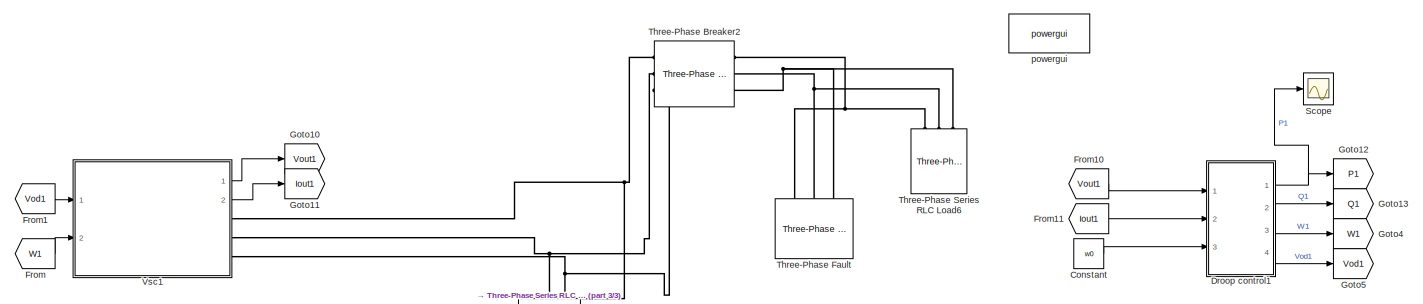
[diagram: root canvas - part 1/3, full width, top band]
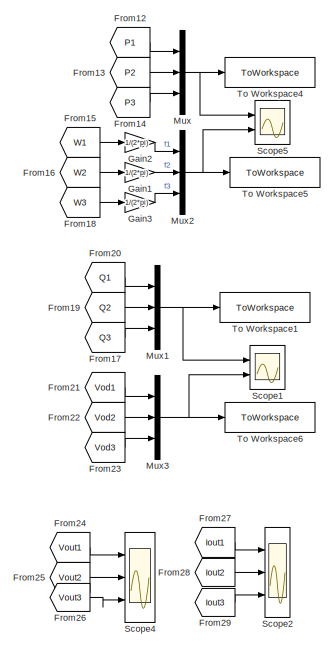
[diagram: root canvas - part 2/3, middle right region]
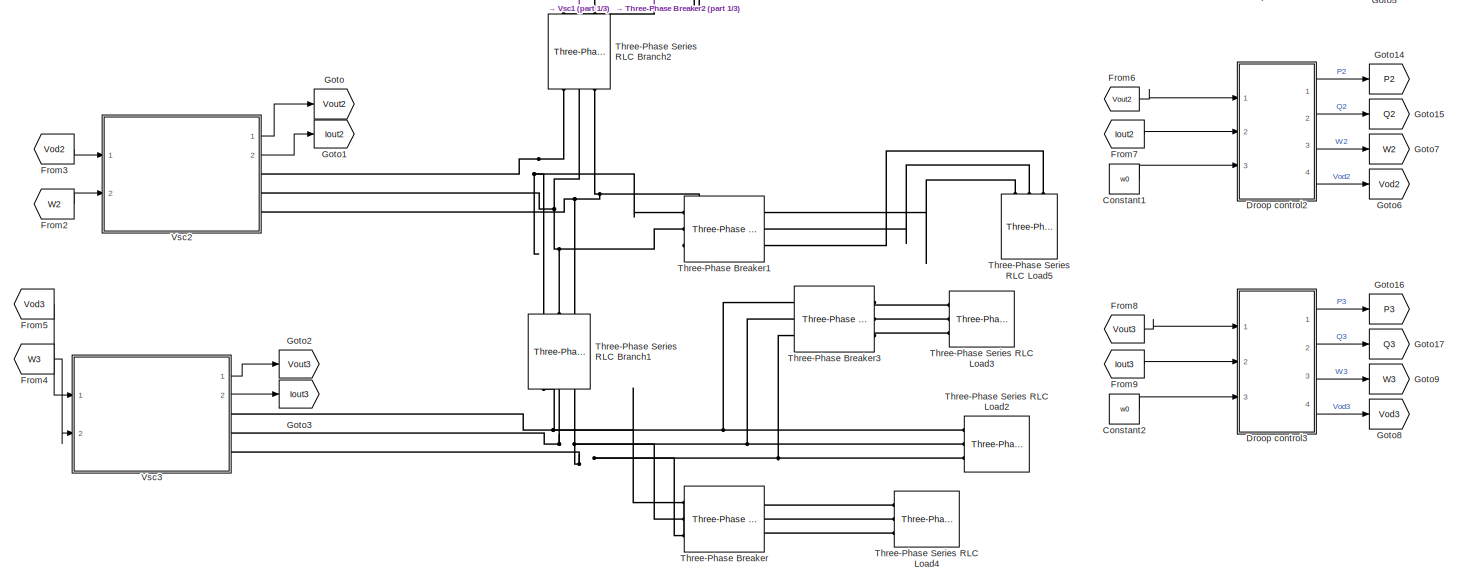
[diagram: root canvas - part 3/3, full width, bottom band]
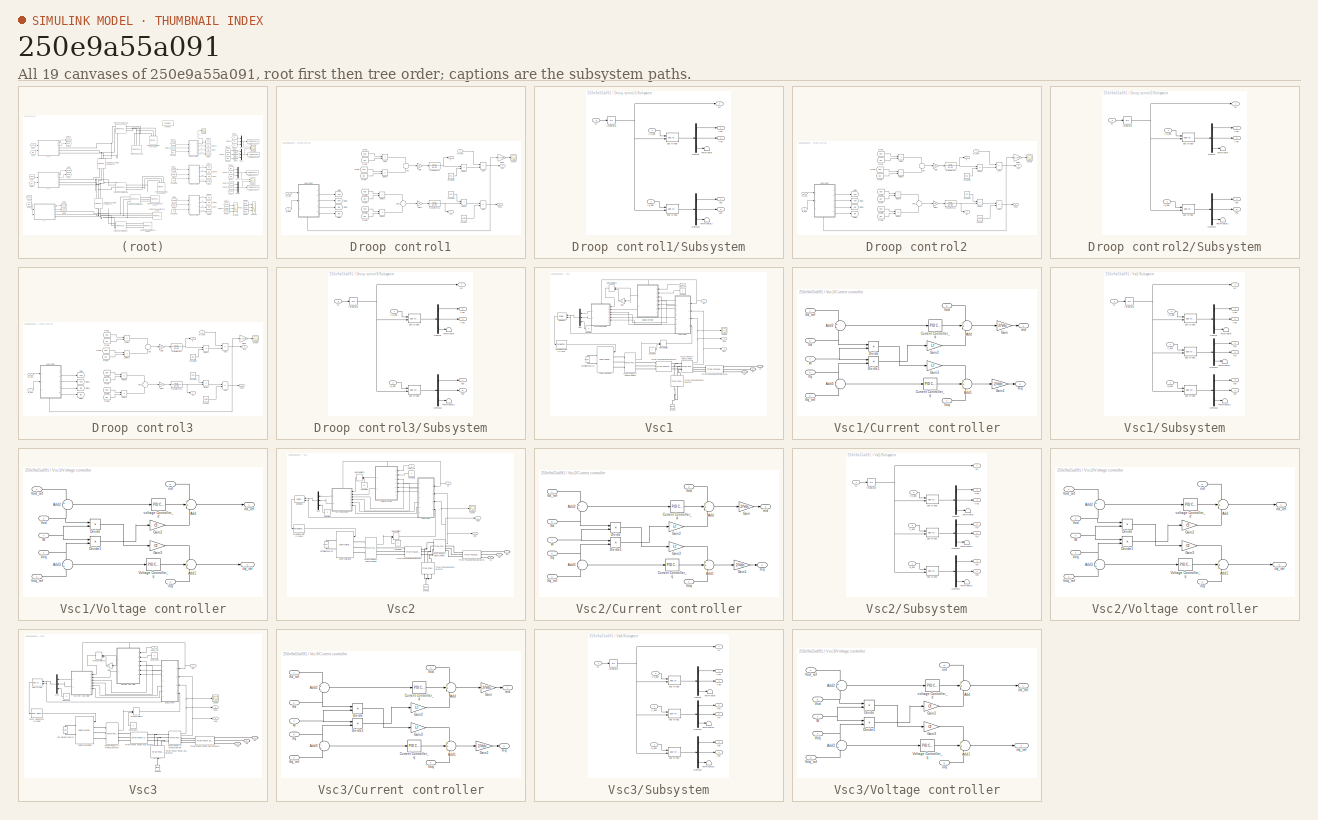
[diagram: thumbnail index - all 19 canvases of the model, root first then tree order]
MODEL slx_250e9a55a091
KIND model
CONFIG AbsTol = auto
CONFIG EnableMultiTasking = off
CONFIG FixedStep = auto
CONFIG InitFcn = fsw=10e3;\nTs=1/(fsw*50);\nVodref=220*sqrt(2);\nVdc=700;\nw0=2*pi*50;\n\nLf=3.5e-3;\nRf=0.1;\nCf=50e-6;\nLc=0.35e-3;\nRc=0.05;\n\nTci=4/(2*pi*fsw);\nwci=1/Tci;\nKpc=Lf*wci;\nKic=Rf*wci;\n\npm=50;\nwcv=1/Tci*(1-sind(pm))/(1+sind(pm));\nwgc=sqrt(wcv*wci);\nKpv=Cf*wgc;\nKiv=Kpv*wcv;\n\nmp1=5e-5;\nnq1=3e-3;\nmp2=5e-5;\nnq2=3e-3;\nmp3=5e-5;\nnq3=3e-3;
CONFIG MaxStep = auto
CONFIG MinStep = auto
CONFIG RelTol = 1e-3
CONFIG SampleTimeConstraint = Unconstrained
CONFIG SolverName = FixedStepAuto
CONFIG StartTime = 0.0
CONFIG StopTime = 3
BLOCK [Constant] Constant
  Value = w0
BLOCK [Constant] Constant1
  Value = w0
BLOCK [Constant] Constant2
  Value = w0
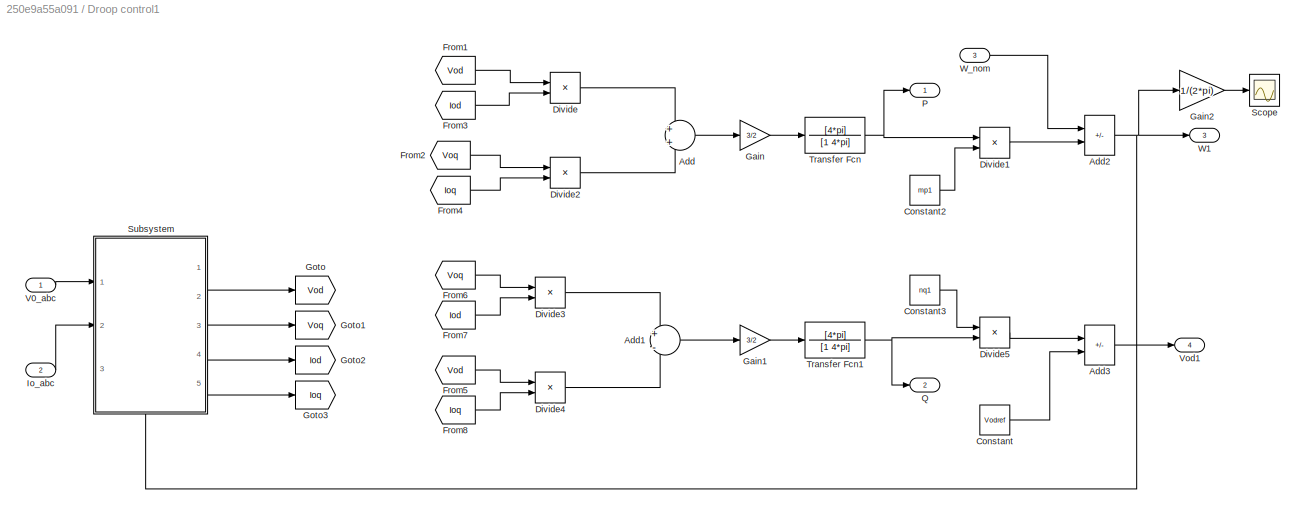
BLOCK [SubSystem] Droop control1
  Ports = [3, 4]
  RequestExecContextInheritance = off
BLOCK [Sum] Droop control1/Add
  Ports = [2, 1]
BLOCK [Sum] Droop control1/Add1
  Inputs = +-
  Ports = [2, 1]
BLOCK [Sum] Droop control1/Add2
  IconShape = rectangular
  Inputs = +-
  Ports = [2, 1]
BLOCK [Sum] Droop control1/Add3
  IconShape = rectangular
  Inputs = -+
  Ports = [2, 1]
BLOCK [Constant] Droop control1/Constant
  Value = Vodref
BLOCK [Constant] Droop control1/Constant2
  Value = mp1
BLOCK [Constant] Droop control1/Constant3
  Value = nq1
BLOCK [Product] Droop control1/Divide
  Inputs = **
  Ports = [2, 1]
BLOCK [Product] Droop control1/Divide1
  Inputs = **
  Ports = [2, 1]
BLOCK [Product] Droop control1/Divide2
  Inputs = **
  Ports = [2, 1]
BLOCK [Product] Droop control1/Divide3
  Inputs = **
  Ports = [2, 1]
BLOCK [Product] Droop control1/Divide4
  Inputs = **
  Ports = [2, 1]
BLOCK [Product] Droop control1/Divide5
  Inputs = **
  Ports = [2, 1]
BLOCK [From] Droop control1/From1
  GotoTag = Vod
BLOCK [From] Droop control1/From2
  GotoTag = Voq
BLOCK [From] Droop control1/From3
  GotoTag = Iod
BLOCK [From] Droop control1/From4
  GotoTag = Ioq
BLOCK [From] Droop control1/From5
  GotoTag = Vod
BLOCK [From] Droop control1/From6
  GotoTag = Voq
BLOCK [From] Droop control1/From7
  GotoTag = Iod
BLOCK [From] Droop control1/From8
  GotoTag = Ioq
BLOCK [Gain] Droop control1/Gain
  Gain = 3/2
BLOCK [Gain] Droop control1/Gain1
  Gain = 3/2
BLOCK [Gain] Droop control1/Gain2
  Gain = 1/(2*pi)
BLOCK [Goto] Droop control1/Goto
  GotoTag = Vod
BLOCK [Goto] Droop control1/Goto1
  GotoTag = Voq
BLOCK [Goto] Droop control1/Goto2
  GotoTag = Iod
BLOCK [Goto] Droop control1/Goto3
  GotoTag = Ioq
BLOCK [Inport] Droop control1/Io_abc
  Port = 2
BLOCK [Outport] Droop control1/P
BLOCK [Outport] Droop control1/Q
  Port = 2
BLOCK [Scope] Droop control1/Scope
  Floating = off
  NumInputPorts = 1
  Ports = [1]
  ScopeSpecificationString = Simulink.scopes.TimeScopeBlockCfg('CurrentConfiguration', extmgr.ConfigurationSet(extmgr.Configuration('Core','General UI',true),extmgr.Configuration('Core','Source UI',true),extmgr.Configuration('Sources','WiredSimulink',true,'DataLoggingVariableName','ScopeData4'),extmgr.Configuration('Visuals','Time Domain',true,'SerializedDisplays',{struct('MinYLimReal','49.85531','MaxYLimReal','50.01608','YLa...<+1425ch>
BLOCK [SubSystem] Droop control1/Subsystem
  PortSchema = {"entries":[{"content":{"sides":[{"content":{"connectorIds":["In1","In2"]},"type":"ConnectorPlacement.EquallySpacedRectSide","uuid":"3c0ce44c-1409-4df9-aab1-2e1a82b43481"},{"content":{"connectorIds":["Out1","Out2","Out3","Out4","Out5"],"side":"RIGHT"},"type":"ConnectorPlacement.EquallySpacedRectSide","uuid":"4a9336a4-679f-4f93-987c-a9f8549bd21c"},{"content":{"connectorIds":[],"side":"TOP"},"type":...<+423ch>  <repeated x3 — deduplicated; at blocks: Subsystem>
  Ports = [3, 5]
  RequestExecContextInheritance = off
BLOCK [Demux] Droop control1/Subsystem/Demux
  Outputs = 3
  Ports = [1, 3]
BLOCK [Demux] Droop control1/Subsystem/Demux2
  Outputs = 3
  Ports = [1, 3]
BLOCK [Integrator] Droop control1/Subsystem/Integrator
  Ports = [1, 1]
BLOCK [Inport] Droop control1/Subsystem/Io_abc
  Port = 2
BLOCK [Outport] Droop control1/Subsystem/Iod
  Port = 4
BLOCK [Outport] Droop control1/Subsystem/Ioq
  Port = 5
BLOCK [Terminator] Droop control1/Subsystem/Terminator
BLOCK [Terminator] Droop control1/Subsystem/Terminator2
BLOCK [Inport] Droop control1/Subsystem/V0_abc
BLOCK [Outport] Droop control1/Subsystem/Vod
  Port = 2
BLOCK [Outport] Droop control1/Subsystem/Voq
  Port = 3
BLOCK [Inport] Droop control1/Subsystem/W
  Port = 3
BLOCK [Reference] Droop control1/Subsystem/abc to dq0  REF=spsabctodq0Lib/abc to dq0
  Ports = [2, 1]
  SourceBlock = spsabctodq0Lib/abc to dq0
  SourceProductBaseCode = PS
  SourceType = abc to dq0 Transformation
BLOCK [Reference] Droop control1/Subsystem/abc to dq2  REF=spsabctodq0Lib/abc to dq0
  Ports = [2, 1]
  SourceBlock = spsabctodq0Lib/abc to dq0
  SourceProductBaseCode = PS
  SourceType = abc to dq0 Transformation
BLOCK [Outport] Droop control1/Subsystem/wt
BLOCK [TransferFcn] Droop control1/Transfer Fcn
  Denominator = [1 4*pi]
  Numerator = [4*pi]
BLOCK [TransferFcn] Droop control1/Transfer Fcn1
  Denominator = [1 4*pi]
  Numerator = [4*pi]
BLOCK [Inport] Droop control1/V0_abc
BLOCK [Outport] Droop control1/Vod1
  Port = 4
BLOCK [Outport] Droop control1/W1
  Port = 3
BLOCK [Inport] Droop control1/W_nom
  Port = 3
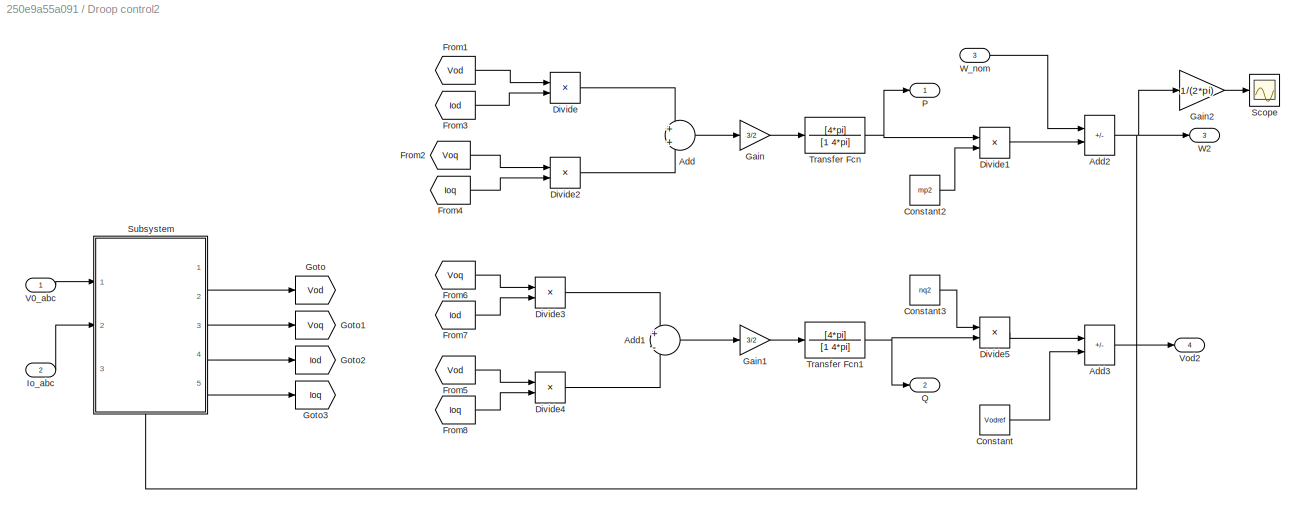
BLOCK [SubSystem] Droop control2
  Ports = [3, 4]
  RequestExecContextInheritance = off
BLOCK [Sum] Droop control2/Add
  Ports = [2, 1]
BLOCK [Sum] Droop control2/Add1
  Inputs = +-
  Ports = [2, 1]
BLOCK [Sum] Droop control2/Add2
  IconShape = rectangular
  Inputs = +-
  Ports = [2, 1]
BLOCK [Sum] Droop control2/Add3
  IconShape = rectangular
  Inputs = -+
  Ports = [2, 1]
BLOCK [Constant] Droop control2/Constant
  Value = Vodref
BLOCK [Constant] Droop control2/Constant2
  Value = mp2
BLOCK [Constant] Droop control2/Constant3
  Value = nq2
BLOCK [Product] Droop control2/Divide
  Inputs = **
  Ports = [2, 1]
BLOCK [Product] Droop control2/Divide1
  Inputs = **
  Ports = [2, 1]
BLOCK [Product] Droop control2/Divide2
  Inputs = **
  Ports = [2, 1]
BLOCK [Product] Droop control2/Divide3
  Inputs = **
  Ports = [2, 1]
BLOCK [Product] Droop control2/Divide4
  Inputs = **
  Ports = [2, 1]
BLOCK [Product] Droop control2/Divide5
  Inputs = **
  Ports = [2, 1]
BLOCK [From] Droop control2/From1
  GotoTag = Vod
BLOCK [From] Droop control2/From2
  GotoTag = Voq
BLOCK [From] Droop control2/From3
  GotoTag = Iod
BLOCK [From] Droop control2/From4
  GotoTag = Ioq
BLOCK [From] Droop control2/From5
  GotoTag = Vod
BLOCK [From] Droop control2/From6
  GotoTag = Voq
BLOCK [From] Droop control2/From7
  GotoTag = Iod
BLOCK [From] Droop control2/From8
  GotoTag = Ioq
BLOCK [Gain] Droop control2/Gain
  Gain = 3/2
BLOCK [Gain] Droop control2/Gain1
  Gain = 3/2
BLOCK [Gain] Droop control2/Gain2
  Gain = 1/(2*pi)
BLOCK [Goto] Droop control2/Goto
  GotoTag = Vod
BLOCK [Goto] Droop control2/Goto1
  GotoTag = Voq
BLOCK [Goto] Droop control2/Goto2
  GotoTag = Iod
BLOCK [Goto] Droop control2/Goto3
  GotoTag = Ioq
BLOCK [Inport] Droop control2/Io_abc
  Port = 2
BLOCK [Outport] Droop control2/P
BLOCK [Outport] Droop control2/Q
  Port = 2
BLOCK [Scope] Droop control2/Scope
  Floating = off
  NumInputPorts = 1
  Ports = [1]
  ScopeSpecificationString = Simulink.scopes.TimeScopeBlockCfg('CurrentConfiguration', extmgr.ConfigurationSet(extmgr.Configuration('Core','General UI',true),extmgr.Configuration('Core','Source UI',true),extmgr.Configuration('Sources','WiredSimulink',true,'DataLoggingVariableName','ScopeData4'),extmgr.Configuration('Visuals','Time Domain',true,'SerializedDisplays',{struct('MinYLimReal','49.85802','MaxYLimReal','50.01578','YLa...<+1425ch>
BLOCK [SubSystem] Droop control2/Subsystem
  Ports = [3, 5]
  RequestExecContextInheritance = off
BLOCK [Demux] Droop control2/Subsystem/Demux
  Outputs = 3
  Ports = [1, 3]
BLOCK [Demux] Droop control2/Subsystem/Demux2
  Outputs = 3
  Ports = [1, 3]
BLOCK [Integrator] Droop control2/Subsystem/Integrator
  Ports = [1, 1]
BLOCK [Inport] Droop control2/Subsystem/Io_abc
  Port = 2
BLOCK [Outport] Droop control2/Subsystem/Iod
  Port = 4
BLOCK [Outport] Droop control2/Subsystem/Ioq
  Port = 5
BLOCK [Terminator] Droop control2/Subsystem/Terminator
BLOCK [Terminator] Droop control2/Subsystem/Terminator2
BLOCK [Inport] Droop control2/Subsystem/V0_abc
BLOCK [Outport] Droop control2/Subsystem/Vod
  Port = 2
BLOCK [Outport] Droop control2/Subsystem/Voq
  Port = 3
BLOCK [Inport] Droop control2/Subsystem/W
  Port = 3
BLOCK [Reference] Droop control2/Subsystem/abc to dq0  REF=spsabctodq0Lib/abc to dq0
  Ports = [2, 1]
  SourceBlock = spsabctodq0Lib/abc to dq0
  SourceProductBaseCode = PS
  SourceType = abc to dq0 Transformation
BLOCK [Reference] Droop control2/Subsystem/abc to dq2  REF=spsabctodq0Lib/abc to dq0
  Ports = [2, 1]
  SourceBlock = spsabctodq0Lib/abc to dq0
  SourceProductBaseCode = PS
  SourceType = abc to dq0 Transformation
BLOCK [Outport] Droop control2/Subsystem/wt
BLOCK [TransferFcn] Droop control2/Transfer Fcn
  Denominator = [1 4*pi]
  Numerator = [4*pi]
BLOCK [TransferFcn] Droop control2/Transfer Fcn1
  Denominator = [1 4*pi]
  Numerator = [4*pi]
BLOCK [Inport] Droop control2/V0_abc
BLOCK [Outport] Droop control2/Vod2
  Port = 4
BLOCK [Outport] Droop control2/W2
  Port = 3
BLOCK [Inport] Droop control2/W_nom
  Port = 3
BLOCK [SubSystem] Droop control3
  Ports = [3, 4]
  RequestExecContextInheritance = off
BLOCK [Sum] Droop control3/Add
  Ports = [2, 1]
BLOCK [Sum] Droop control3/Add1
  Inputs = +-
  Ports = [2, 1]
BLOCK [Sum] Droop control3/Add2
  IconShape = rectangular
  Inputs = +-
  Ports = [2, 1]
BLOCK [Sum] Droop control3/Add3
  IconShape = rectangular
  Inputs = -+
  Ports = [2, 1]
BLOCK [Constant] Droop control3/Constant
  Value = Vodref
BLOCK [Constant] Droop control3/Constant2
  Value = mp3
BLOCK [Constant] Droop control3/Constant3
  Value = nq3
BLOCK [Product] Droop control3/Divide
  Inputs = **
  Ports = [2, 1]
BLOCK [Product] Droop control3/Divide1
  Inputs = **
  Ports = [2, 1]
BLOCK [Product] Droop control3/Divide2
  Inputs = **
  Ports = [2, 1]
BLOCK [Product] Droop control3/Divide3
  Inputs = **
  Ports = [2, 1]
BLOCK [Product] Droop control3/Divide4
  Inputs = **
  Ports = [2, 1]
BLOCK [Product] Droop control3/Divide5
  Inputs = **
  Ports = [2, 1]
BLOCK [From] Droop control3/From1
  GotoTag = Vod
BLOCK [From] Droop control3/From2
  GotoTag = Voq
BLOCK [From] Droop control3/From3
  GotoTag = Iod
BLOCK [From] Droop control3/From4
  GotoTag = Ioq
BLOCK [From] Droop control3/From5
  GotoTag = Vod
BLOCK [From] Droop control3/From6
  GotoTag = Voq
BLOCK [From] Droop control3/From7
  GotoTag = Iod
BLOCK [From] Droop control3/From8
  GotoTag = Ioq
BLOCK [Gain] Droop control3/Gain
  Gain = 3/2
BLOCK [Gain] Droop control3/Gain1
  Gain = 3/2
BLOCK [Gain] Droop control3/Gain2
  Gain = 1/(2*pi)
BLOCK [Goto] Droop control3/Goto
  GotoTag = Vod
BLOCK [Goto] Droop control3/Goto1
  GotoTag = Voq
BLOCK [Goto] Droop control3/Goto2
  GotoTag = Iod
BLOCK [Goto] Droop control3/Goto3
  GotoTag = Ioq
BLOCK [Inport] Droop control3/Io_abc
  Port = 2
BLOCK [Outport] Droop control3/P
BLOCK [Outport] Droop control3/Q
  Port = 2
BLOCK [Scope] Droop control3/Scope
  Floating = off
  NumInputPorts = 1
  Ports = [1]
  ScopeSpecificationString = Simulink.scopes.TimeScopeBlockCfg('CurrentConfiguration', extmgr.ConfigurationSet(extmgr.Configuration('Core','General UI',true),extmgr.Configuration('Core','Source UI',true),extmgr.Configuration('Sources','WiredSimulink',true,'DataLoggingVariableName','ScopeData4'),extmgr.Configuration('Visuals','Time Domain',true,'SerializedDisplays',{struct('MinYLimReal','49.41732','MaxYLimReal','50.06474','YLa...<+1425ch>
BLOCK [SubSystem] Droop control3/Subsystem
  Ports = [3, 5]
  RequestExecContextInheritance = off
BLOCK [Demux] Droop control3/Subsystem/Demux
  Outputs = 3
  Ports = [1, 3]
BLOCK [Demux] Droop control3/Subsystem/Demux2
  Outputs = 3
  Ports = [1, 3]
BLOCK [Integrator] Droop control3/Subsystem/Integrator
  Ports = [1, 1]
BLOCK [Inport] Droop control3/Subsystem/Io_abc
  Port = 2
BLOCK [Outport] Droop control3/Subsystem/Iod
  Port = 4
BLOCK [Outport] Droop control3/Subsystem/Ioq
  Port = 5
BLOCK [Terminator] Droop control3/Subsystem/Terminator
BLOCK [Terminator] Droop control3/Subsystem/Terminator2
BLOCK [Inport] Droop control3/Subsystem/V0_abc
BLOCK [Outport] Droop control3/Subsystem/Vod
  Port = 2
BLOCK [Outport] Droop control3/Subsystem/Voq
  Port = 3
BLOCK [Inport] Droop control3/Subsystem/W
  Port = 3
BLOCK [Reference] Droop control3/Subsystem/abc to dq0  REF=spsabctodq0Lib/abc to dq0
  Ports = [2, 1]
  SourceBlock = spsabctodq0Lib/abc to dq0
  SourceProductBaseCode = PS
  SourceType = abc to dq0 Transformation
BLOCK [Reference] Droop control3/Subsystem/abc to dq2  REF=spsabctodq0Lib/abc to dq0
  Ports = [2, 1]
  SourceBlock = spsabctodq0Lib/abc to dq0
  SourceProductBaseCode = PS
  SourceType = abc to dq0 Transformation
BLOCK [Outport] Droop control3/Subsystem/wt
BLOCK [TransferFcn] Droop control3/Transfer Fcn
  Denominator = [1 4*pi]
  Numerator = [4*pi]
BLOCK [TransferFcn] Droop control3/Transfer Fcn1
  Denominator = [1 4*pi]
  Numerator = [4*pi]
BLOCK [Inport] Droop control3/V0_abc
BLOCK [Outport] Droop control3/Vod3
  Port = 4
BLOCK [Outport] Droop control3/W3
  Port = 3
BLOCK [Inport] Droop control3/W_nom
  Port = 3
BLOCK [From] From
  GotoTag = W1
BLOCK [From] From1
  GotoTag = Vod1
BLOCK [From] From10
  GotoTag = Vout1
BLOCK [From] From11
  GotoTag = Iout1
BLOCK [From] From12
  GotoTag = P1
BLOCK [From] From13
  GotoTag = P2
BLOCK [From] From14
  GotoTag = P3
BLOCK [From] From15
  GotoTag = W1
BLOCK [From] From16
  GotoTag = W2
BLOCK [From] From17
  GotoTag = Q3
BLOCK [From] From18
  GotoTag = W3
BLOCK [From] From19
  GotoTag = Q2
BLOCK [From] From2
  GotoTag = W2
BLOCK [From] From20
  GotoTag = Q1
BLOCK [From] From21
  GotoTag = Vod1
BLOCK [From] From22
  GotoTag = Vod2
BLOCK [From] From23
  GotoTag = Vod3
BLOCK [From] From24
  GotoTag = Vout1
BLOCK [From] From25
  GotoTag = Vout2
BLOCK [From] From26
  GotoTag = Vout3
BLOCK [From] From27
  GotoTag = Iout1
BLOCK [From] From28
  GotoTag = Iout2
BLOCK [From] From29
  GotoTag = Iout3
BLOCK [From] From3
  GotoTag = Vod2
BLOCK [From] From4
  GotoTag = W3
BLOCK [From] From5
  GotoTag = Vod3
BLOCK [From] From6
  GotoTag = Vout2
BLOCK [From] From7
  GotoTag = Iout2
BLOCK [From] From8
  GotoTag = Vout3
BLOCK [From] From9
  GotoTag = Iout3
BLOCK [Gain] Gain1
  Gain = 1/(2*pi)
BLOCK [Gain] Gain2
  Gain = 1/(2*pi)
BLOCK [Gain] Gain3
  Gain = 1/(2*pi)
BLOCK [Goto] Goto
  GotoTag = Vout2
BLOCK [Goto] Goto1
  GotoTag = Iout2
BLOCK [Goto] Goto10
  GotoTag = Vout1
BLOCK [Goto] Goto11
  GotoTag = Iout1
BLOCK [Goto] Goto12
  GotoTag = P1
BLOCK [Goto] Goto13
  GotoTag = Q1
BLOCK [Goto] Goto14
  GotoTag = P2
BLOCK [Goto] Goto15
  GotoTag = Q2
BLOCK [Goto] Goto16
  GotoTag = P3
BLOCK [Goto] Goto17
  GotoTag = Q3
BLOCK [Goto] Goto2
  GotoTag = Vout3
BLOCK [Goto] Goto3
  GotoTag = Iout3
BLOCK [Goto] Goto4
  GotoTag = W1
BLOCK [Goto] Goto5
  GotoTag = Vod1
BLOCK [Goto] Goto6
  GotoTag = Vod2
BLOCK [Goto] Goto7
  GotoTag = W2
BLOCK [Goto] Goto8
  GotoTag = Vod3
BLOCK [Goto] Goto9
  GotoTag = W3
BLOCK [Mux] Mux
  DisplayOption = bar
  Inputs = 3
  Ports = [3, 1]
BLOCK [Mux] Mux1
  DisplayOption = bar
  Inputs = 3
  Ports = [3, 1]
BLOCK [Mux] Mux2
  DisplayOption = bar
  Inputs = 3
  Ports = [3, 1]
BLOCK [Mux] Mux3
  DisplayOption = bar
  Inputs = 3
  Ports = [3, 1]
BLOCK [Scope] Scope
  Floating = off
  NumInputPorts = 1
  Ports = [1]
  ScopeSpecificationString = Simulink.scopes.TimeScopeBlockCfg('CurrentConfiguration', extmgr.ConfigurationSet(extmgr.Configuration('Core','General UI',true),extmgr.Configuration('Core','Source UI',true),extmgr.Configuration('Sources','WiredSimulink',true,'DataLoggingVariableName','ScopeData1'),extmgr.Configuration('Visuals','Time Domain',true,'SerializedDisplays',{struct('MinYLimReal','-846.67333','MaxYLimReal','7620.05996',...<+1379ch>
BLOCK [Scope] Scope1
  Floating = off
  NumInputPorts = 2
  Ports = [2]
  ScopeSpecificationString = Simulink.scopes.TimeScopeBlockCfg('CurrentConfiguration', extmgr.ConfigurationSet(extmgr.Configuration('Core','General UI',true,'FigureColor',[1 1 1]),extmgr.Configuration('Core','Source UI',true),extmgr.Configuration('Sources','WiredSimulink',true,'DataLoggingVariableName','ScopeData1','DataLogging',true,'DataLoggingSaveFormat','StructureWithTime'),extmgr.Configuration('Visuals','Time Domain',tru...<+3208ch>
BLOCK [Scope] Scope2
  Floating = off
  NumInputPorts = 3
  Ports = [3]
  ScopeSpecificationString = Simulink.scopes.TimeScopeBlockCfg('CurrentConfiguration', extmgr.ConfigurationSet(extmgr.Configuration('Core','General UI',true,'FigureColor',[1 1 1]),extmgr.Configuration('Core','Source UI',true),extmgr.Configuration('Sources','WiredSimulink',true,'DataLoggingVariableName','ScopeData1','DataLoggingSaveFormat','StructureWithTime'),extmgr.Configuration('Visuals','Time Domain',true,'SerializedDispla...<+4009ch>
BLOCK [Scope] Scope4
  Floating = off
  NumInputPorts = 3
  Ports = [3]
  ScopeSpecificationString = Simulink.scopes.TimeScopeBlockCfg('CurrentConfiguration', extmgr.ConfigurationSet(extmgr.Configuration('Core','General UI',true,'FigureColor',[1 1 1]),extmgr.Configuration('Core','Source UI',true),extmgr.Configuration('Sources','WiredSimulink',true,'DataLoggingVariableName','ScopeData5','DataLogging',true,'DataLoggingSaveFormat','StructureWithTime'),extmgr.Configuration('Visuals','Time Domain',tru...<+4011ch>
BLOCK [Scope] Scope5
  Floating = off
  NumInputPorts = 2
  Ports = [2]
  ScopeSpecificationString = Simulink.scopes.TimeScopeBlockCfg('CurrentConfiguration', extmgr.ConfigurationSet(extmgr.Configuration('Core','General UI',true,'FigureColor',[1 1 1]),extmgr.Configuration('Core','Source UI',true),extmgr.Configuration('Sources','WiredSimulink',true,'DataLoggingVariableName','ScopeData2','DataLogging',true,'DataLoggingSaveFormat','StructureWithTime'),extmgr.Configuration('Visuals','Time Domain',tru...<+3231ch>
BLOCK [Reference] Three-Phase Breaker  REF=spsThreePhaseBreakerLib/Three-Phase Breaker
  Ports = [0, 0, 0, 0, 0, 3, 3]
  SourceBlock = spsThreePhaseBreakerLib/Three-Phase Breaker
  SourceProductBaseCode = PS
  SourceType = Three-Phase Breaker
BLOCK [Reference] Three-Phase Breaker1  REF=spsThreePhaseBreakerLib/Three-Phase Breaker
  Ports = [0, 0, 0, 0, 0, 3, 3]
  SourceBlock = spsThreePhaseBreakerLib/Three-Phase Breaker
  SourceProductBaseCode = PS
  SourceType = Three-Phase Breaker
BLOCK [Reference] Three-Phase Breaker2  REF=spsThreePhaseBreakerLib/Three-Phase Breaker
  Ports = [0, 0, 0, 0, 0, 3, 3]
  SourceBlock = spsThreePhaseBreakerLib/Three-Phase Breaker
  SourceProductBaseCode = PS
  SourceType = Three-Phase Breaker
BLOCK [Reference] Three-Phase Breaker3  REF=spsThreePhaseBreakerLib/Three-Phase Breaker
  NameLocation = top
  Ports = [0, 0, 0, 0, 0, 3, 3]
  SourceBlock = spsThreePhaseBreakerLib/Three-Phase Breaker
  SourceProductBaseCode = PS
  SourceType = Three-Phase Breaker
BLOCK [Reference] Three-Phase Fault  REF=spsThreePhaseFaultLib/Three-Phase Fault
  NameLocation = left
  Ports = [0, 0, 0, 0, 0, 3]
  SourceBlock = spsThreePhaseFaultLib/Three-Phase Fault
  SourceProductBaseCode = PS
  SourceType = Three-Phase Fault
BLOCK [Reference] Three-Phase Series RLC Branch1  REF=spsThreePhaseSeriesRLCBranchLib/Three-Phase
Series RLC Branch
  AttributesFormatString = \n
  NameLocation = left
  Ports = [0, 0, 0, 0, 0, 3, 3]
  SourceBlock = spsThreePhaseSeriesRLCBranchLib/Three-Phase\nSeries RLC Branch
  SourceProductBaseCode = PS
  SourceType = Three-Phase Series RLC Branch
BLOCK [Reference] Three-Phase Series RLC Branch2  REF=spsThreePhaseSeriesRLCBranchLib/Three-Phase
Series RLC Branch
  AttributesFormatString = \n
  NameLocation = left
  Ports = [0, 0, 0, 0, 0, 3, 3]
  SourceBlock = spsThreePhaseSeriesRLCBranchLib/Three-Phase\nSeries RLC Branch
  SourceProductBaseCode = PS
  SourceType = Three-Phase Series RLC Branch
BLOCK [Reference] Three-Phase Series RLC Load2  REF=spsThreePhaseSeriesRLCLoadLib/Three-Phase
Series RLC Load
  AttributesFormatString = \n
  NameLocation = right
  Ports = [0, 0, 0, 0, 0, 3]
  SourceBlock = spsThreePhaseSeriesRLCLoadLib/Three-Phase\nSeries RLC Load
  SourceProductBaseCode = PS
  SourceType = Three-Phase Series RLC Load
BLOCK [Reference] Three-Phase Series RLC Load3  REF=spsThreePhaseSeriesRLCLoadLib/Three-Phase
Series RLC Load
  AttributesFormatString = \n
  NameLocation = right
  Ports = [0, 0, 0, 0, 0, 3]
  SourceBlock = spsThreePhaseSeriesRLCLoadLib/Three-Phase\nSeries RLC Load
  SourceProductBaseCode = PS
  SourceType = Three-Phase Series RLC Load
BLOCK [Reference] Three-Phase Series RLC Load4  REF=spsThreePhaseSeriesRLCLoadLib/Three-Phase
Series RLC Load
  AttributesFormatString = \n
  NameLocation = right
  Ports = [0, 0, 0, 0, 0, 3]
  SourceBlock = spsThreePhaseSeriesRLCLoadLib/Three-Phase\nSeries RLC Load
  SourceProductBaseCode = PS
  SourceType = Three-Phase Series RLC Load
BLOCK [Reference] Three-Phase Series RLC Load5  REF=spsThreePhaseSeriesRLCLoadLib/Three-Phase
Series RLC Load
  AttributesFormatString = \n
  Ports = [0, 0, 0, 0, 0, 3]
  SourceBlock = spsThreePhaseSeriesRLCLoadLib/Three-Phase\nSeries RLC Load
  SourceProductBaseCode = PS
  SourceType = Three-Phase Series RLC Load
BLOCK [Reference] Three-Phase Series RLC Load6  REF=spsThreePhaseSeriesRLCLoadLib/Three-Phase
Series RLC Load
  AttributesFormatString = \n
  Ports = [0, 0, 0, 0, 0, 3]
  SourceBlock = spsThreePhaseSeriesRLCLoadLib/Three-Phase\nSeries RLC Load
  SourceProductBaseCode = PS
  SourceType = Three-Phase Series RLC Load
BLOCK [ToWorkspace] To Workspace1
  FixptAsFi = on
  MaxDataPoints = inf
  Ports = [1]
  SampleTime = -1
  SaveFormat = Structure With Time
  VariableName = Q
BLOCK [ToWorkspace] To Workspace4
  FixptAsFi = on
  MaxDataPoints = inf
  Ports = [1]
  SampleTime = -1
  SaveFormat = Structure With Time
  VariableName = power
BLOCK [ToWorkspace] To Workspace5
  FixptAsFi = on
  MaxDataPoints = inf
  Ports = [1]
  SampleTime = -1
  SaveFormat = Structure With Time
  VariableName = frequency
BLOCK [ToWorkspace] To Workspace6
  FixptAsFi = on
  MaxDataPoints = inf
  Ports = [1]
  SampleTime = -1
  SaveFormat = Structure With Time
  VariableName = V
BLOCK [SubSystem] Vsc1
  Ports = [2, 2, 0, 0, 0, 0, 3]
  RequestExecContextInheritance = off
BLOCK [Constant] Vsc1/Constant
  Value = 0
BLOCK [Constant] Vsc1/Constant1
  Value = 0
BLOCK [Constant] Vsc1/Constant2
  Value = 0
BLOCK [SubSystem] Vsc1/Current controller
  PortSchema = {"entries":[{"content":{"sides":[{"content":{"connectorIds":["In1","In2","In3","In4","In5","In6"]},"type":"ConnectorPlacement.EquallySpacedRectSide","uuid":"afbd0cd8-be12-4bd7-a6dd-f7dac5cf4512"},{"content":{"connectorIds":["Out1","Out2"],"side":"RIGHT"},"type":"ConnectorPlacement.EquallySpacedRectSide","uuid":"a2288591-3041-41c1-b291-e9e060e5938f"},{"content":{"connectorIds":["In7"],"side":"TOP"}...<+282ch>  <repeated x6 — deduplicated; at blocks: Current controller, Voltage controller>
  Ports = [7, 2]
  RequestExecContextInheritance = off
BLOCK [Sum] Vsc1/Current controller/Add
  Inputs = ++-
  Ports = [3, 1]
BLOCK [Sum] Vsc1/Current controller/Add1
  Inputs = +++
  Ports = [3, 1]
BLOCK [Sum] Vsc1/Current controller/Add2
  Inputs = +-
  Ports = [2, 1]
BLOCK [Sum] Vsc1/Current controller/Add3
  Inputs = -+
  Ports = [2, 1]
BLOCK [Reference] Vsc1/Current controller/Current Controller_d  REF=pid_lib/PID Controller
  Ports = [1, 1]
  SourceBlock = pid_lib/PID Controller
  SourceProductBaseCode = SL
  SourceType = PID 1dof
BLOCK [Reference] Vsc1/Current controller/Current Controller_q  REF=pid_lib/PID Controller
  Ports = [1, 1]
  SourceBlock = pid_lib/PID Controller
  SourceProductBaseCode = SL
  SourceType = PID 1dof
BLOCK [Product] Vsc1/Current controller/Divide
  Inputs = **
  Ports = [2, 1]
BLOCK [Product] Vsc1/Current controller/Divide1
  Inputs = **
  Ports = [2, 1]
BLOCK [Gain] Vsc1/Current controller/Gain
  Gain = 2/Vdc
BLOCK [Gain] Vsc1/Current controller/Gain1
  Gain = 2/Vdc
BLOCK [Gain] Vsc1/Current controller/Gain2
  Gain = Lf
BLOCK [Gain] Vsc1/Current controller/Gain3
  Gain = Lf
BLOCK [Inport] Vsc1/Current controller/Ifd
  Port = 5
BLOCK [Inport] Vsc1/Current controller/Ifd_ref
BLOCK [Inport] Vsc1/Current controller/Ifq
  Port = 6
BLOCK [Inport] Vsc1/Current controller/Ifq_ref
  Port = 2
BLOCK [Inport] Vsc1/Current controller/Vod
  Port = 3
BLOCK [Inport] Vsc1/Current controller/Voq
  Port = 4
BLOCK [Inport] Vsc1/Current controller/W
  Port = 7
BLOCK [Outport] Vsc1/Current controller/md
BLOCK [Outport] Vsc1/Current controller/mq
  Port = 2
BLOCK [Reference] Vsc1/DC Voltage Source  REF=spsDCVoltageSourceLib/DC Voltage Source
  Ports = [0, 0, 0, 0, 0, 1, 1]
  SourceBlock = spsDCVoltageSourceLib/DC Voltage Source
  SourceProductBaseCode = PS
  SourceType = DC Voltage Source
BLOCK [Gain] Vsc1/Gain
  Gain = 2.2
  NameLocation = top
BLOCK [Reference] Vsc1/Ground  REF=spsGroundLib/Ground
  NameLocation = right
  Ports = [0, 0, 0, 0, 0, 1]
  SourceBlock = spsGroundLib/Ground
  SourceProductBaseCode = PS
  SourceType = Ground
BLOCK [Outport] Vsc1/Iabc
  Port = 2
BLOCK [ManualSwitch] Vsc1/Manual Switch
BLOCK [ManualSwitch] Vsc1/Manual Switch1
  NameLocation = top
BLOCK [Mux] Vsc1/Mux
  DisplayOption = bar
  Inputs = 3
  Ports = [3, 1]
BLOCK [Reference] Vsc1/PWM Generator (2-Level)  REF=spsPWMGenerator2LevelLib/PWM Generator
(2-Level)
  Ports = [1, 1]
  SourceBlock = spsPWMGenerator2LevelLib/PWM Generator\n(2-Level)
  SourceProductBaseCode = PS
  SourceType = PWM Generator (2-Level)
BLOCK [Scope] Vsc1/Scope
  Floating = off
  NumInputPorts = 1
  Ports = [1]
  ScopeSpecificationString = Simulink.scopes.TimeScopeBlockCfg('CurrentConfiguration', extmgr.ConfigurationSet(extmgr.Configuration('Core','General UI',true),extmgr.Configuration('Core','Source UI',true),extmgr.Configuration('Sources','WiredSimulink',true),extmgr.Configuration('Visuals','Time Domain',true,'SerializedDisplays',{struct('MinYLimReal','123.49947','MaxYLimReal','320.87543','YLabelReal','','MinYLimMag','123.49947',...<+1522ch>
BLOCK [SubSystem] Vsc1/Subsystem
  Ports = [4, 7]
  RequestExecContextInheritance = off
BLOCK [Demux] Vsc1/Subsystem/Demux
  Outputs = 3
  Ports = [1, 3]
BLOCK [Demux] Vsc1/Subsystem/Demux1
  Outputs = 3
  Ports = [1, 3]
BLOCK [Demux] Vsc1/Subsystem/Demux2
  Outputs = 3
  Ports = [1, 3]
BLOCK [Inport] Vsc1/Subsystem/If_abc
  Port = 4
BLOCK [Outport] Vsc1/Subsystem/Ifd
  Port = 5
BLOCK [Outport] Vsc1/Subsystem/Ifq
  Port = 6
BLOCK [Integrator] Vsc1/Subsystem/Integrator
  Ports = [1, 1]
BLOCK [Inport] Vsc1/Subsystem/Io_abc
  Port = 2
BLOCK [Outport] Vsc1/Subsystem/Iod
  Port = 3
BLOCK [Outport] Vsc1/Subsystem/Ioq
  Port = 4
BLOCK [Terminator] Vsc1/Subsystem/Terminator
BLOCK [Terminator] Vsc1/Subsystem/Terminator1
BLOCK [Terminator] Vsc1/Subsystem/Terminator2
BLOCK [Inport] Vsc1/Subsystem/V0_abc
  Port = 3
BLOCK [Outport] Vsc1/Subsystem/Vod
BLOCK [Outport] Vsc1/Subsystem/Voq
  Port = 2
BLOCK [Inport] Vsc1/Subsystem/W
BLOCK [Reference] Vsc1/Subsystem/abc to dq0  REF=spsabctodq0Lib/abc to dq0
  Ports = [2, 1]
  SourceBlock = spsabctodq0Lib/abc to dq0
  SourceProductBaseCode = PS
  SourceType = abc to dq0 Transformation
BLOCK [Reference] Vsc1/Subsystem/abc to dq1  REF=spsabctodq0Lib/abc to dq0
  Ports = [2, 1]
  SourceBlock = spsabctodq0Lib/abc to dq0
  SourceProductBaseCode = PS
  SourceType = abc to dq0 Transformation
BLOCK [Reference] Vsc1/Subsystem/abc to dq2  REF=spsabctodq0Lib/abc to dq0
  Ports = [2, 1]
  SourceBlock = spsabctodq0Lib/abc to dq0
  SourceProductBaseCode = PS
  SourceType = abc to dq0 Transformation
BLOCK [Outport] Vsc1/Subsystem/wt
  Port = 7
BLOCK [Reference] Vsc1/Three-Phase Series RLC Branch  REF=spsThreePhaseSeriesRLCBranchLib/Three-Phase
Series RLC Branch
  AttributesFormatString = \n
  Ports = [0, 0, 0, 0, 0, 3, 3]
  SourceBlock = spsThreePhaseSeriesRLCBranchLib/Three-Phase\nSeries RLC Branch
  SourceProductBaseCode = PS
  SourceType = Three-Phase Series RLC Branch
BLOCK [Reference] Vsc1/Three-Phase Series RLC Branch1  REF=spsThreePhaseSeriesRLCBranchLib/Three-Phase
Series RLC Branch
  AttributesFormatString = \n
  Ports = [0, 0, 0, 0, 0, 3, 3]
  SourceBlock = spsThreePhaseSeriesRLCBranchLib/Three-Phase\nSeries RLC Branch
  SourceProductBaseCode = PS
  SourceType = Three-Phase Series RLC Branch
BLOCK [Reference] Vsc1/Three-Phase Series RLC Branch2  REF=spsThreePhaseSeriesRLCBranchLib/Three-Phase
Series RLC Branch
  AttributesFormatString = \n
  NameLocation = left
  Ports = [0, 0, 0, 0, 0, 3, 3]
  SourceBlock = spsThreePhaseSeriesRLCBranchLib/Three-Phase\nSeries RLC Branch
  SourceProductBaseCode = PS
  SourceType = Three-Phase Series RLC Branch
BLOCK [Reference] Vsc1/Three-Phase V-I Measurement  REF=spsThreePhaseVIMeasurementLib/Three-Phase
V-I Measurement
  Ports = [0, 2, 0, 0, 0, 3, 3]
  SourceBlock = spsThreePhaseVIMeasurementLib/Three-Phase\nV-I Measurement
  SourceProductBaseCode = PS
  SourceType = Three-Phase VI Measurement
BLOCK [Reference] Vsc1/Three-Phase V-I Measurement1  REF=spsThreePhaseVIMeasurementLib/Three-Phase
V-I Measurement
  Ports = [0, 2, 0, 0, 0, 3, 3]
  SourceBlock = spsThreePhaseVIMeasurementLib/Three-Phase\nV-I Measurement
  SourceProductBaseCode = PS
  SourceType = Three-Phase VI Measurement
BLOCK [Reference] Vsc1/Universal Bridge  REF=spsUniversalBridgeLib/Universal Bridge
  Ports = [1, 0, 0, 0, 0, 3, 2]
  SourceBlock = spsUniversalBridgeLib/Universal Bridge
  SourceProductBaseCode = PS
  SourceType = Universal Bridge
BLOCK [PMIOPort] Vsc1/Va
  Side = Right
BLOCK [Outport] Vsc1/Vabc
BLOCK [PMIOPort] Vsc1/Vb
  Port = 2
  Side = Right
BLOCK [PMIOPort] Vsc1/Vc
  Port = 3
  Side = Right
BLOCK [Inport] Vsc1/Vod1_ref
BLOCK [SubSystem] Vsc1/Voltage controller
  Ports = [7, 2]
  RequestExecContextInheritance = off
BLOCK [Sum] Vsc1/Voltage controller/Add
  Inputs = ++-
  Ports = [3, 1]
BLOCK [Sum] Vsc1/Voltage controller/Add1
  Inputs = +++
  Ports = [3, 1]
BLOCK [Sum] Vsc1/Voltage controller/Add2
  Inputs = +-
  Ports = [2, 1]
BLOCK [Sum] Vsc1/Voltage controller/Add3
  Inputs = -+
  Ports = [2, 1]
BLOCK [Product] Vsc1/Voltage controller/Divide
  Inputs = **
  Ports = [2, 1]
BLOCK [Product] Vsc1/Voltage controller/Divide1
  Inputs = **
  Ports = [2, 1]
BLOCK [Gain] Vsc1/Voltage controller/Gain2
  Gain = Cf
BLOCK [Gain] Vsc1/Voltage controller/Gain3
  Gain = Cf
BLOCK [Inport] Vsc1/Voltage controller/Vod
  Port = 3
BLOCK [Inport] Vsc1/Voltage controller/Vod_ref
BLOCK [Reference] Vsc1/Voltage controller/Voltage Controller_q  REF=pid_lib/PID Controller
  Ports = [1, 1]
  SourceBlock = pid_lib/PID Controller
  SourceProductBaseCode = SL
  SourceType = PID 1dof
BLOCK [Inport] Vsc1/Voltage controller/Voq
  Port = 4
BLOCK [Inport] Vsc1/Voltage controller/Voq_ref
  Port = 2
BLOCK [Inport] Vsc1/Voltage controller/W
  Port = 7
BLOCK [Outport] Vsc1/Voltage controller/ifd_ref
BLOCK [Outport] Vsc1/Voltage controller/ifq_ref
  Port = 2
BLOCK [Inport] Vsc1/Voltage controller/iod
  Port = 5
BLOCK [Inport] Vsc1/Voltage controller/ioq
  Port = 6
BLOCK [Reference] Vsc1/Voltage controller/voltage Controller_d  REF=pid_lib/PID Controller
  Ports = [1, 1]
  SourceBlock = pid_lib/PID Controller
  SourceProductBaseCode = SL
  SourceType = PID 1dof
BLOCK [Inport] Vsc1/W
  Port = 2
BLOCK [Reference] Vsc1/dq0 to abc  REF=spsdq0toabcLib/dq0 to abc
  Ports = [2, 1]
  SourceBlock = spsdq0toabcLib/dq0 to abc
  SourceProductBaseCode = PS
  SourceType = dq0 to abc Transformation
BLOCK [SubSystem] Vsc2
  Ports = [2, 2, 0, 0, 0, 0, 3]
  RequestExecContextInheritance = off
BLOCK [Constant] Vsc2/Constant
  Value = 0
BLOCK [Constant] Vsc2/Constant1
  Value = 0
BLOCK [Constant] Vsc2/Constant2
  Value = 0
BLOCK [Constant] Vsc2/Constant3
  NameLocation = right
  Value = 50
BLOCK [SubSystem] Vsc2/Current controller
  Ports = [7, 2]
  RequestExecContextInheritance = off
BLOCK [Sum] Vsc2/Current controller/Add
  Inputs = ++-
  Ports = [3, 1]
BLOCK [Sum] Vsc2/Current controller/Add1
  Inputs = +++
  Ports = [3, 1]
BLOCK [Sum] Vsc2/Current controller/Add2
  Inputs = +-
  Ports = [2, 1]
BLOCK [Sum] Vsc2/Current controller/Add3
  Inputs = -+
  Ports = [2, 1]
BLOCK [Reference] Vsc2/Current controller/Current Controller_d  REF=pid_lib/PID Controller
  Ports = [1, 1]
  SourceBlock = pid_lib/PID Controller
  SourceProductBaseCode = SL
  SourceType = PID 1dof
BLOCK [Reference] Vsc2/Current controller/Current Controller_q  REF=pid_lib/PID Controller
  Ports = [1, 1]
  SourceBlock = pid_lib/PID Controller
  SourceProductBaseCode = SL
  SourceType = PID 1dof
BLOCK [Product] Vsc2/Current controller/Divide
  Inputs = **
  Ports = [2, 1]
BLOCK [Product] Vsc2/Current controller/Divide1
  Inputs = **
  Ports = [2, 1]
BLOCK [Gain] Vsc2/Current controller/Gain
  Gain = 2/Vdc
BLOCK [Gain] Vsc2/Current controller/Gain1
  Gain = 2/Vdc
BLOCK [Gain] Vsc2/Current controller/Gain2
  Gain = Lf
BLOCK [Gain] Vsc2/Current controller/Gain3
  Gain = Lf
BLOCK [Inport] Vsc2/Current controller/Ifd
  Port = 5
BLOCK [Inport] Vsc2/Current controller/Ifd_ref
BLOCK [Inport] Vsc2/Current controller/Ifq
  Port = 6
BLOCK [Inport] Vsc2/Current controller/Ifq_ref
  Port = 2
BLOCK [Inport] Vsc2/Current controller/Vod
  Port = 3
BLOCK [Inport] Vsc2/Current controller/Voq
  Port = 4
BLOCK [Inport] Vsc2/Current controller/W
  Port = 7
BLOCK [Outport] Vsc2/Current controller/md
BLOCK [Outport] Vsc2/Current controller/mq
  Port = 2
BLOCK [Reference] Vsc2/DC Voltage Source  REF=spsDCVoltageSourceLib/DC Voltage Source
  Ports = [0, 0, 0, 0, 0, 1, 1]
  SourceBlock = spsDCVoltageSourceLib/DC Voltage Source
  SourceProductBaseCode = PS
  SourceType = DC Voltage Source
BLOCK [Reference] Vsc2/Ground  REF=spsGroundLib/Ground
  NameLocation = right
  Ports = [0, 0, 0, 0, 0, 1]
  SourceBlock = spsGroundLib/Ground
  SourceProductBaseCode = PS
  SourceType = Ground
BLOCK [Outport] Vsc2/Iabc
  Port = 2
BLOCK [ManualSwitch] Vsc2/Manual Switch
BLOCK [ManualSwitch] Vsc2/Manual Switch1
  NameLocation = top
BLOCK [Mux] Vsc2/Mux
  DisplayOption = bar
  Inputs = 3
  Ports = [3, 1]
BLOCK [Reference] Vsc2/PWM Generator (2-Level)  REF=spsPWMGenerator2LevelLib/PWM Generator
(2-Level)
  Ports = [1, 1]
  SourceBlock = spsPWMGenerator2LevelLib/PWM Generator\n(2-Level)
  SourceProductBaseCode = PS
  SourceType = PWM Generator (2-Level)
BLOCK [Scope] Vsc2/Scope
  Floating = off
  NumInputPorts = 1
  Ports = [1]
  ScopeSpecificationString = Simulink.scopes.TimeScopeBlockCfg('CurrentConfiguration', extmgr.ConfigurationSet(extmgr.Configuration('Core','General UI',true),extmgr.Configuration('Core','Source UI',true),extmgr.Configuration('Sources','WiredSimulink',true),extmgr.Configuration('Visuals','Time Domain',true,'SerializedDisplays',{struct('MinYLimReal','-559.47778','MaxYLimReal','443.77786','YLabelReal','','MinYLimMag',' 0.00000',...<+1549ch>
BLOCK [SubSystem] Vsc2/Subsystem
  Ports = [4, 7]
  RequestExecContextInheritance = off
BLOCK [Demux] Vsc2/Subsystem/Demux
  Outputs = 3
  Ports = [1, 3]
BLOCK [Demux] Vsc2/Subsystem/Demux1
  Outputs = 3
  Ports = [1, 3]
BLOCK [Demux] Vsc2/Subsystem/Demux2
  Outputs = 3
  Ports = [1, 3]
BLOCK [Inport] Vsc2/Subsystem/If_abc
  Port = 4
BLOCK [Outport] Vsc2/Subsystem/Ifd
  Port = 5
BLOCK [Outport] Vsc2/Subsystem/Ifq
  Port = 6
BLOCK [Integrator] Vsc2/Subsystem/Integrator
  Ports = [1, 1]
BLOCK [Inport] Vsc2/Subsystem/Io_abc
  Port = 2
BLOCK [Outport] Vsc2/Subsystem/Iod
  Port = 3
BLOCK [Outport] Vsc2/Subsystem/Ioq
  Port = 4
BLOCK [Terminator] Vsc2/Subsystem/Terminator
BLOCK [Terminator] Vsc2/Subsystem/Terminator1
BLOCK [Terminator] Vsc2/Subsystem/Terminator2
BLOCK [Inport] Vsc2/Subsystem/V0_abc
  Port = 3
BLOCK [Outport] Vsc2/Subsystem/Vod
BLOCK [Outport] Vsc2/Subsystem/Voq
  Port = 2
BLOCK [Inport] Vsc2/Subsystem/W
BLOCK [Reference] Vsc2/Subsystem/abc to dq0  REF=spsabctodq0Lib/abc to dq0
  Ports = [2, 1]
  SourceBlock = spsabctodq0Lib/abc to dq0
  SourceProductBaseCode = PS
  SourceType = abc to dq0 Transformation
BLOCK [Reference] Vsc2/Subsystem/abc to dq1  REF=spsabctodq0Lib/abc to dq0
  Ports = [2, 1]
  SourceBlock = spsabctodq0Lib/abc to dq0
  SourceProductBaseCode = PS
  SourceType = abc to dq0 Transformation
BLOCK [Reference] Vsc2/Subsystem/abc to dq2  REF=spsabctodq0Lib/abc to dq0
  Ports = [2, 1]
  SourceBlock = spsabctodq0Lib/abc to dq0
  SourceProductBaseCode = PS
  SourceType = abc to dq0 Transformation
BLOCK [Outport] Vsc2/Subsystem/wt
  Port = 7
BLOCK [Reference] Vsc2/Three-Phase Series RLC Branch  REF=spsThreePhaseSeriesRLCBranchLib/Three-Phase
Series RLC Branch
  AttributesFormatString = \n
  Ports = [0, 0, 0, 0, 0, 3, 3]
  SourceBlock = spsThreePhaseSeriesRLCBranchLib/Three-Phase\nSeries RLC Branch
  SourceProductBaseCode = PS
  SourceType = Three-Phase Series RLC Branch
BLOCK [Reference] Vsc2/Three-Phase Series RLC Branch1  REF=spsThreePhaseSeriesRLCBranchLib/Three-Phase
Series RLC Branch
  AttributesFormatString = \n
  Ports = [0, 0, 0, 0, 0, 3, 3]
  SourceBlock = spsThreePhaseSeriesRLCBranchLib/Three-Phase\nSeries RLC Branch
  SourceProductBaseCode = PS
  SourceType = Three-Phase Series RLC Branch
BLOCK [Reference] Vsc2/Three-Phase Series RLC Branch2  REF=spsThreePhaseSeriesRLCBranchLib/Three-Phase
Series RLC Branch
  AttributesFormatString = \n
  NameLocation = left
  Ports = [0, 0, 0, 0, 0, 3, 3]
  SourceBlock = spsThreePhaseSeriesRLCBranchLib/Three-Phase\nSeries RLC Branch
  SourceProductBaseCode = PS
  SourceType = Three-Phase Series RLC Branch
BLOCK [Reference] Vsc2/Three-Phase V-I Measurement  REF=spsThreePhaseVIMeasurementLib/Three-Phase
V-I Measurement
  Ports = [0, 2, 0, 0, 0, 3, 3]
  SourceBlock = spsThreePhaseVIMeasurementLib/Three-Phase\nV-I Measurement
  SourceProductBaseCode = PS
  SourceType = Three-Phase VI Measurement
BLOCK [Reference] Vsc2/Three-Phase V-I Measurement1  REF=spsThreePhaseVIMeasurementLib/Three-Phase
V-I Measurement
  Ports = [0, 2, 0, 0, 0, 3, 3]
  SourceBlock = spsThreePhaseVIMeasurementLib/Three-Phase\nV-I Measurement
  SourceProductBaseCode = PS
  SourceType = Three-Phase VI Measurement
BLOCK [Reference] Vsc2/Universal Bridge  REF=spsUniversalBridgeLib/Universal Bridge
  Ports = [1, 0, 0, 0, 0, 3, 2]
  SourceBlock = spsUniversalBridgeLib/Universal Bridge
  SourceProductBaseCode = PS
  SourceType = Universal Bridge
BLOCK [PMIOPort] Vsc2/Va
  Side = Right
BLOCK [Outport] Vsc2/Vabc
BLOCK [PMIOPort] Vsc2/Vb
  Port = 2
  Side = Right
BLOCK [PMIOPort] Vsc2/Vc
  Port = 3
  Side = Right
BLOCK [Inport] Vsc2/Vod2_ref
BLOCK [SubSystem] Vsc2/Voltage controller
  Ports = [7, 2]
  RequestExecContextInheritance = off
BLOCK [Sum] Vsc2/Voltage controller/Add
  Inputs = ++-
  Ports = [3, 1]
BLOCK [Sum] Vsc2/Voltage controller/Add1
  Inputs = +++
  Ports = [3, 1]
BLOCK [Sum] Vsc2/Voltage controller/Add2
  Inputs = +-
  Ports = [2, 1]
BLOCK [Sum] Vsc2/Voltage controller/Add3
  Inputs = -+
  Ports = [2, 1]
BLOCK [Product] Vsc2/Voltage controller/Divide
  Inputs = **
  Ports = [2, 1]
BLOCK [Product] Vsc2/Voltage controller/Divide1
  Inputs = **
  Ports = [2, 1]
BLOCK [Gain] Vsc2/Voltage controller/Gain2
  Gain = Cf
BLOCK [Gain] Vsc2/Voltage controller/Gain3
  Gain = Cf
BLOCK [Inport] Vsc2/Voltage controller/Vod
  Port = 3
BLOCK [Inport] Vsc2/Voltage controller/Vod_ref
BLOCK [Reference] Vsc2/Voltage controller/Voltage Controller_q  REF=pid_lib/PID Controller
  Ports = [1, 1]
  SourceBlock = pid_lib/PID Controller
  SourceProductBaseCode = SL
  SourceType = PID 1dof
BLOCK [Inport] Vsc2/Voltage controller/Voq
  Port = 4
BLOCK [Inport] Vsc2/Voltage controller/Voq_ref
  Port = 2
BLOCK [Inport] Vsc2/Voltage controller/W
  Port = 7
BLOCK [Outport] Vsc2/Voltage controller/ifd_ref
BLOCK [Outport] Vsc2/Voltage controller/ifq_ref
  Port = 2
BLOCK [Inport] Vsc2/Voltage controller/iod
  Port = 5
BLOCK [Inport] Vsc2/Voltage controller/ioq
  Port = 6
BLOCK [Reference] Vsc2/Voltage controller/voltage Controller_d  REF=pid_lib/PID Controller
  Ports = [1, 1]
  SourceBlock = pid_lib/PID Controller
  SourceProductBaseCode = SL
  SourceType = PID 1dof
BLOCK [Inport] Vsc2/W
  Port = 2
BLOCK [Reference] Vsc2/dq0 to abc  REF=spsdq0toabcLib/dq0 to abc
  Ports = [2, 1]
  SourceBlock = spsdq0toabcLib/dq0 to abc
  SourceProductBaseCode = PS
  SourceType = dq0 to abc Transformation
BLOCK [SubSystem] Vsc3
  Ports = [2, 2, 0, 0, 0, 0, 3]
  RequestExecContextInheritance = off
BLOCK [Constant] Vsc3/Constant
  Value = 0
BLOCK [Constant] Vsc3/Constant1
  Value = 0
BLOCK [Constant] Vsc3/Constant2
  Value = 0
BLOCK [SubSystem] Vsc3/Current controller
  Ports = [7, 2]
  RequestExecContextInheritance = off
BLOCK [Sum] Vsc3/Current controller/Add
  Inputs = ++-
  Ports = [3, 1]
BLOCK [Sum] Vsc3/Current controller/Add1
  Inputs = +++
  Ports = [3, 1]
BLOCK [Sum] Vsc3/Current controller/Add2
  Inputs = +-
  Ports = [2, 1]
BLOCK [Sum] Vsc3/Current controller/Add3
  Inputs = -+
  Ports = [2, 1]
BLOCK [Reference] Vsc3/Current controller/Current Controller_d  REF=pid_lib/PID Controller
  Ports = [1, 1]
  SourceBlock = pid_lib/PID Controller
  SourceProductBaseCode = SL
  SourceType = PID 1dof
BLOCK [Reference] Vsc3/Current controller/Current Controller_q  REF=pid_lib/PID Controller
  Ports = [1, 1]
  SourceBlock = pid_lib/PID Controller
  SourceProductBaseCode = SL
  SourceType = PID 1dof
BLOCK [Product] Vsc3/Current controller/Divide
  Inputs = **
  Ports = [2, 1]
BLOCK [Product] Vsc3/Current controller/Divide1
  Inputs = **
  Ports = [2, 1]
BLOCK [Gain] Vsc3/Current controller/Gain
  Gain = 2/Vdc
BLOCK [Gain] Vsc3/Current controller/Gain1
  Gain = 2/Vdc
BLOCK [Gain] Vsc3/Current controller/Gain2
  Gain = Lf
BLOCK [Gain] Vsc3/Current controller/Gain3
  Gain = Lf
BLOCK [Inport] Vsc3/Current controller/Ifd
  Port = 5
BLOCK [Inport] Vsc3/Current controller/Ifd_ref
BLOCK [Inport] Vsc3/Current controller/Ifq
  Port = 6
BLOCK [Inport] Vsc3/Current controller/Ifq_ref
  Port = 2
BLOCK [Inport] Vsc3/Current controller/Vod
  Port = 3
BLOCK [Inport] Vsc3/Current controller/Voq
  Port = 4
BLOCK [Inport] Vsc3/Current controller/W
  Port = 7
BLOCK [Outport] Vsc3/Current controller/md
BLOCK [Outport] Vsc3/Current controller/mq
  Port = 2
BLOCK [Reference] Vsc3/DC Voltage Source  REF=spsDCVoltageSourceLib/DC Voltage Source
  Ports = [0, 0, 0, 0, 0, 1, 1]
  SourceBlock = spsDCVoltageSourceLib/DC Voltage Source
  SourceProductBaseCode = PS
  SourceType = DC Voltage Source
BLOCK [Gain] Vsc3/Gain
  Gain = 2.2
  NameLocation = top
BLOCK [Reference] Vsc3/Ground  REF=spsGroundLib/Ground
  NameLocation = right
  Ports = [0, 0, 0, 0, 0, 1]
  SourceBlock = spsGroundLib/Ground
  SourceProductBaseCode = PS
  SourceType = Ground
BLOCK [Outport] Vsc3/Iabc
  Port = 2
BLOCK [ManualSwitch] Vsc3/Manual Switch
BLOCK [ManualSwitch] Vsc3/Manual Switch1
  CurrentSetting = 0
  NameLocation = top
BLOCK [Mux] Vsc3/Mux
  DisplayOption = bar
  Inputs = 3
  Ports = [3, 1]
BLOCK [Reference] Vsc3/PWM Generator (2-Level)  REF=spsPWMGenerator2LevelLib/PWM Generator
(2-Level)
  Ports = [1, 1]
  SourceBlock = spsPWMGenerator2LevelLib/PWM Generator\n(2-Level)
  SourceProductBaseCode = PS
  SourceType = PWM Generator (2-Level)
BLOCK [Scope] Vsc3/Scope
  Floating = off
  NumInputPorts = 1
  Ports = [1]
  ScopeSpecificationString = Simulink.scopes.TimeScopeBlockCfg('CurrentConfiguration', extmgr.ConfigurationSet(extmgr.Configuration('Core','General UI',true),extmgr.Configuration('Core','Source UI',true),extmgr.Configuration('Sources','WiredSimulink',true),extmgr.Configuration('Visuals','Time Domain',true,'SerializedDisplays',{struct('MinYLimReal','-728.9708','MaxYLimReal','581.10225','YLabelReal','','MinYLimMag',' 0.00000','...<+1545ch>
BLOCK [SubSystem] Vsc3/Subsystem
  Ports = [4, 7]
  RequestExecContextInheritance = off
BLOCK [Demux] Vsc3/Subsystem/Demux
  Outputs = 3
  Ports = [1, 3]
BLOCK [Demux] Vsc3/Subsystem/Demux1
  Outputs = 3
  Ports = [1, 3]
BLOCK [Demux] Vsc3/Subsystem/Demux2
  Outputs = 3
  Ports = [1, 3]
BLOCK [Inport] Vsc3/Subsystem/If_abc
  Port = 4
BLOCK [Outport] Vsc3/Subsystem/Ifd
  Port = 5
BLOCK [Outport] Vsc3/Subsystem/Ifq
  Port = 6
BLOCK [Integrator] Vsc3/Subsystem/Integrator
  Ports = [1, 1]
BLOCK [Inport] Vsc3/Subsystem/Io_abc
  Port = 2
BLOCK [Outport] Vsc3/Subsystem/Iod
  Port = 3
BLOCK [Outport] Vsc3/Subsystem/Ioq
  Port = 4
BLOCK [Terminator] Vsc3/Subsystem/Terminator
BLOCK [Terminator] Vsc3/Subsystem/Terminator1
BLOCK [Terminator] Vsc3/Subsystem/Terminator2
BLOCK [Inport] Vsc3/Subsystem/V0_abc
  Port = 3
BLOCK [Outport] Vsc3/Subsystem/Vod
BLOCK [Outport] Vsc3/Subsystem/Voq
  Port = 2
BLOCK [Inport] Vsc3/Subsystem/W
BLOCK [Reference] Vsc3/Subsystem/abc to dq0  REF=spsabctodq0Lib/abc to dq0
  Ports = [2, 1]
  SourceBlock = spsabctodq0Lib/abc to dq0
  SourceProductBaseCode = PS
  SourceType = abc to dq0 Transformation
BLOCK [Reference] Vsc3/Subsystem/abc to dq1  REF=spsabctodq0Lib/abc to dq0
  Ports = [2, 1]
  SourceBlock = spsabctodq0Lib/abc to dq0
  SourceProductBaseCode = PS
  SourceType = abc to dq0 Transformation
BLOCK [Reference] Vsc3/Subsystem/abc to dq2  REF=spsabctodq0Lib/abc to dq0
  Ports = [2, 1]
  SourceBlock = spsabctodq0Lib/abc to dq0
  SourceProductBaseCode = PS
  SourceType = abc to dq0 Transformation
BLOCK [Outport] Vsc3/Subsystem/wt
  Port = 7
BLOCK [Reference] Vsc3/Three-Phase Series RLC Branch  REF=spsThreePhaseSeriesRLCBranchLib/Three-Phase
Series RLC Branch
  AttributesFormatString = \n
  Ports = [0, 0, 0, 0, 0, 3, 3]
  SourceBlock = spsThreePhaseSeriesRLCBranchLib/Three-Phase\nSeries RLC Branch
  SourceProductBaseCode = PS
  SourceType = Three-Phase Series RLC Branch
BLOCK [Reference] Vsc3/Three-Phase Series RLC Branch1  REF=spsThreePhaseSeriesRLCBranchLib/Three-Phase
Series RLC Branch
  AttributesFormatString = \n
  Ports = [0, 0, 0, 0, 0, 3, 3]
  SourceBlock = spsThreePhaseSeriesRLCBranchLib/Three-Phase\nSeries RLC Branch
  SourceProductBaseCode = PS
  SourceType = Three-Phase Series RLC Branch
BLOCK [Reference] Vsc3/Three-Phase Series RLC Branch2  REF=spsThreePhaseSeriesRLCBranchLib/Three-Phase
Series RLC Branch
  AttributesFormatString = \n
  NameLocation = left
  Ports = [0, 0, 0, 0, 0, 3, 3]
  SourceBlock = spsThreePhaseSeriesRLCBranchLib/Three-Phase\nSeries RLC Branch
  SourceProductBaseCode = PS
  SourceType = Three-Phase Series RLC Branch
BLOCK [Reference] Vsc3/Three-Phase V-I Measurement  REF=spsThreePhaseVIMeasurementLib/Three-Phase
V-I Measurement
  Ports = [0, 2, 0, 0, 0, 3, 3]
  SourceBlock = spsThreePhaseVIMeasurementLib/Three-Phase\nV-I Measurement
  SourceProductBaseCode = PS
  SourceType = Three-Phase VI Measurement
BLOCK [Reference] Vsc3/Three-Phase V-I Measurement1  REF=spsThreePhaseVIMeasurementLib/Three-Phase
V-I Measurement
  Ports = [0, 2, 0, 0, 0, 3, 3]
  SourceBlock = spsThreePhaseVIMeasurementLib/Three-Phase\nV-I Measurement
  SourceProductBaseCode = PS
  SourceType = Three-Phase VI Measurement
BLOCK [Reference] Vsc3/Universal Bridge  REF=spsUniversalBridgeLib/Universal Bridge
  Ports = [1, 0, 0, 0, 0, 3, 2]
  SourceBlock = spsUniversalBridgeLib/Universal Bridge
  SourceProductBaseCode = PS
  SourceType = Universal Bridge
BLOCK [PMIOPort] Vsc3/Va
  Side = Right
BLOCK [Outport] Vsc3/Vabc
BLOCK [PMIOPort] Vsc3/Vb
  Port = 2
  Side = Right
BLOCK [PMIOPort] Vsc3/Vc
  Port = 3
  Side = Right
BLOCK [Inport] Vsc3/Vod3_ref
BLOCK [SubSystem] Vsc3/Voltage controller
  Ports = [7, 2]
  RequestExecContextInheritance = off
BLOCK [Sum] Vsc3/Voltage controller/Add
  Inputs = ++-
  Ports = [3, 1]
BLOCK [Sum] Vsc3/Voltage controller/Add1
  Inputs = +++
  Ports = [3, 1]
BLOCK [Sum] Vsc3/Voltage controller/Add2
  Inputs = +-
  Ports = [2, 1]
BLOCK [Sum] Vsc3/Voltage controller/Add3
  Inputs = -+
  Ports = [2, 1]
BLOCK [Product] Vsc3/Voltage controller/Divide
  Inputs = **
  Ports = [2, 1]
BLOCK [Product] Vsc3/Voltage controller/Divide1
  Inputs = **
  Ports = [2, 1]
BLOCK [Gain] Vsc3/Voltage controller/Gain2
  Gain = Cf
BLOCK [Gain] Vsc3/Voltage controller/Gain3
  Gain = Cf
BLOCK [Inport] Vsc3/Voltage controller/Vod
  Port = 3
BLOCK [Inport] Vsc3/Voltage controller/Vod_ref
BLOCK [Reference] Vsc3/Voltage controller/Voltage Controller_q  REF=pid_lib/PID Controller
  Ports = [1, 1]
  SourceBlock = pid_lib/PID Controller
  SourceProductBaseCode = SL
  SourceType = PID 1dof
BLOCK [Inport] Vsc3/Voltage controller/Voq
  Port = 4
BLOCK [Inport] Vsc3/Voltage controller/Voq_ref
  Port = 2
BLOCK [Inport] Vsc3/Voltage controller/W
  Port = 7
BLOCK [Outport] Vsc3/Voltage controller/ifd_ref
BLOCK [Outport] Vsc3/Voltage controller/ifq_ref
  Port = 2
BLOCK [Inport] Vsc3/Voltage controller/iod
  Port = 5
BLOCK [Inport] Vsc3/Voltage controller/ioq
  Port = 6
BLOCK [Reference] Vsc3/Voltage controller/voltage Controller_d  REF=pid_lib/PID Controller
  Ports = [1, 1]
  SourceBlock = pid_lib/PID Controller
  SourceProductBaseCode = SL
  SourceType = PID 1dof
BLOCK [Inport] Vsc3/W
  Port = 2
BLOCK [Reference] Vsc3/dq0 to abc  REF=spsdq0toabcLib/dq0 to abc
  Ports = [2, 1]
  SourceBlock = spsdq0toabcLib/dq0 to abc
  SourceProductBaseCode = PS
  SourceType = dq0 to abc Transformation
BLOCK [Reference] powergui  REF=spspowerguiLib/powergui
  Ports = []
  Priority = 1
  SourceBlock = spspowerguiLib/powergui
  SourceProductBaseCode = PS
  SourceType = PSB option menu block
LINE Constant1:1 -> Droop control2:3
LINE Constant2:1 -> Droop control3:3
LINE Constant:1 -> Droop control1:3
LINE Droop control1/Add1:1 -> Droop control1/Gain1:1
NET Droop control1/Add2:1 -> Droop control1/Gain2:1, Droop control1/Subsystem:3, Droop control1/W1:1
LINE Droop control1/Add3:1 -> Droop control1/Vod1:1
LINE Droop control1/Add:1 -> Droop control1/Gain:1
LINE Droop control1/Constant2:1 -> Droop control1/Divide1:2
LINE Droop control1/Constant3:1 -> Droop control1/Divide5:1
LINE Droop control1/Constant:1 -> Droop control1/Add3:2
LINE Droop control1/Divide1:1 -> Droop control1/Add2:2
LINE Droop control1/Divide2:1 -> Droop control1/Add:2
LINE Droop control1/Divide3:1 -> Droop control1/Add1:1
LINE Droop control1/Divide4:1 -> Droop control1/Add1:2
LINE Droop control1/Divide5:1 -> Droop control1/Add3:1
LINE Droop control1/Divide:1 -> Droop control1/Add:1
LINE Droop control1/From1:1 -> Droop control1/Divide:1
LINE Droop control1/From2:1 -> Droop control1/Divide2:1
LINE Droop control1/From3:1 -> Droop control1/Divide:2
LINE Droop control1/From4:1 -> Droop control1/Divide2:2
LINE Droop control1/From5:1 -> Droop control1/Divide4:1
LINE Droop control1/From6:1 -> Droop control1/Divide3:1
LINE Droop control1/From7:1 -> Droop control1/Divide3:2
LINE Droop control1/From8:1 -> Droop control1/Divide4:2
LINE Droop control1/Gain1:1 -> Droop control1/Transfer Fcn1:1
LINE Droop control1/Gain2:1 -> Droop control1/Scope:1
LINE Droop control1/Gain:1 -> Droop control1/Transfer Fcn:1
LINE Droop control1/Io_abc:1 -> Droop control1/Subsystem:2
LINE Droop control1/Subsystem/Demux2:1 -> Droop control1/Subsystem/Iod:1
LINE Droop control1/Subsystem/Demux2:2 -> Droop control1/Subsystem/Ioq:1
LINE Droop control1/Subsystem/Demux2:3 -> Droop control1/Subsystem/Terminator2:1
LINE Droop control1/Subsystem/Demux:1 -> Droop control1/Subsystem/Vod:1
LINE Droop control1/Subsystem/Demux:2 -> Droop control1/Subsystem/Voq:1
LINE Droop control1/Subsystem/Demux:3 -> Droop control1/Subsystem/Terminator:1
NET Droop control1/Subsystem/Integrator:1 -> Droop control1/Subsystem/abc to dq0:2, Droop control1/Subsystem/abc to dq2:2, Droop control1/Subsystem/wt:1
LINE Droop control1/Subsystem/Io_abc:1 -> Droop control1/Subsystem/abc to dq2:1
LINE Droop control1/Subsystem/V0_abc:1 -> Droop control1/Subsystem/abc to dq0:1
LINE Droop control1/Subsystem/W:1 -> Droop control1/Subsystem/Integrator:1
LINE Droop control1/Subsystem/abc to dq0:1 -> Droop control1/Subsystem/Demux:1
LINE Droop control1/Subsystem/abc to dq2:1 -> Droop control1/Subsystem/Demux2:1
LINE Droop control1/Subsystem:2 -> Droop control1/Goto:1
LINE Droop control1/Subsystem:3 -> Droop control1/Goto1:1
LINE Droop control1/Subsystem:4 -> Droop control1/Goto2:1
LINE Droop control1/Subsystem:5 -> Droop control1/Goto3:1
NET Droop control1/Transfer Fcn1:1 -> Droop control1/Divide5:2, Droop control1/Q:1
NET Droop control1/Transfer Fcn:1 -> Droop control1/Divide1:1, Droop control1/P:1
LINE Droop control1/V0_abc:1 -> Droop control1/Subsystem:1
LINE Droop control1/W_nom:1 -> Droop control1/Add2:1
NET Droop control1:1 -> Goto12:1, Scope:1
LINE Droop control1:2 -> Goto13:1
LINE Droop control1:3 -> Goto4:1
LINE Droop control1:4 -> Goto5:1
LINE Droop control2/Add1:1 -> Droop control2/Gain1:1
NET Droop control2/Add2:1 -> Droop control2/Gain2:1, Droop control2/Subsystem:3, Droop control2/W2:1
LINE Droop control2/Add3:1 -> Droop control2/Vod2:1
LINE Droop control2/Add:1 -> Droop control2/Gain:1
LINE Droop control2/Constant2:1 -> Droop control2/Divide1:2
LINE Droop control2/Constant3:1 -> Droop control2/Divide5:1
LINE Droop control2/Constant:1 -> Droop control2/Add3:2
LINE Droop control2/Divide1:1 -> Droop control2/Add2:2
LINE Droop control2/Divide2:1 -> Droop control2/Add:2
LINE Droop control2/Divide3:1 -> Droop control2/Add1:1
LINE Droop control2/Divide4:1 -> Droop control2/Add1:2
LINE Droop control2/Divide5:1 -> Droop control2/Add3:1
LINE Droop control2/Divide:1 -> Droop control2/Add:1
LINE Droop control2/From1:1 -> Droop control2/Divide:1
LINE Droop control2/From2:1 -> Droop control2/Divide2:1
LINE Droop control2/From3:1 -> Droop control2/Divide:2
LINE Droop control2/From4:1 -> Droop control2/Divide2:2
LINE Droop control2/From5:1 -> Droop control2/Divide4:1
LINE Droop control2/From6:1 -> Droop control2/Divide3:1
LINE Droop control2/From7:1 -> Droop control2/Divide3:2
LINE Droop control2/From8:1 -> Droop control2/Divide4:2
LINE Droop control2/Gain1:1 -> Droop control2/Transfer Fcn1:1
LINE Droop control2/Gain2:1 -> Droop control2/Scope:1
LINE Droop control2/Gain:1 -> Droop control2/Transfer Fcn:1
LINE Droop control2/Io_abc:1 -> Droop control2/Subsystem:2
LINE Droop control2/Subsystem/Demux2:1 -> Droop control2/Subsystem/Iod:1
LINE Droop control2/Subsystem/Demux2:2 -> Droop control2/Subsystem/Ioq:1
LINE Droop control2/Subsystem/Demux2:3 -> Droop control2/Subsystem/Terminator2:1
LINE Droop control2/Subsystem/Demux:1 -> Droop control2/Subsystem/Vod:1
LINE Droop control2/Subsystem/Demux:2 -> Droop control2/Subsystem/Voq:1
LINE Droop control2/Subsystem/Demux:3 -> Droop control2/Subsystem/Terminator:1
NET Droop control2/Subsystem/Integrator:1 -> Droop control2/Subsystem/abc to dq0:2, Droop control2/Subsystem/abc to dq2:2, Droop control2/Subsystem/wt:1
LINE Droop control2/Subsystem/Io_abc:1 -> Droop control2/Subsystem/abc to dq2:1
LINE Droop control2/Subsystem/V0_abc:1 -> Droop control2/Subsystem/abc to dq0:1
LINE Droop control2/Subsystem/W:1 -> Droop control2/Subsystem/Integrator:1
LINE Droop control2/Subsystem/abc to dq0:1 -> Droop control2/Subsystem/Demux:1
LINE Droop control2/Subsystem/abc to dq2:1 -> Droop control2/Subsystem/Demux2:1
LINE Droop control2/Subsystem:2 -> Droop control2/Goto:1
LINE Droop control2/Subsystem:3 -> Droop control2/Goto1:1
LINE Droop control2/Subsystem:4 -> Droop control2/Goto2:1
LINE Droop control2/Subsystem:5 -> Droop control2/Goto3:1
NET Droop control2/Transfer Fcn1:1 -> Droop control2/Divide5:2, Droop control2/Q:1
NET Droop control2/Transfer Fcn:1 -> Droop control2/Divide1:1, Droop control2/P:1
LINE Droop control2/V0_abc:1 -> Droop control2/Subsystem:1
LINE Droop control2/W_nom:1 -> Droop control2/Add2:1
LINE Droop control2:1 -> Goto14:1
LINE Droop control2:2 -> Goto15:1
LINE Droop control2:3 -> Goto7:1
LINE Droop control2:4 -> Goto6:1
LINE Droop control3/Add1:1 -> Droop control3/Gain1:1
NET Droop control3/Add2:1 -> Droop control3/Gain2:1, Droop control3/Subsystem:3, Droop control3/W3:1
LINE Droop control3/Add3:1 -> Droop control3/Vod3:1
LINE Droop control3/Add:1 -> Droop control3/Gain:1
LINE Droop control3/Constant2:1 -> Droop control3/Divide1:2
LINE Droop control3/Constant3:1 -> Droop control3/Divide5:1
LINE Droop control3/Constant:1 -> Droop control3/Add3:2
LINE Droop control3/Divide1:1 -> Droop control3/Add2:2
LINE Droop control3/Divide2:1 -> Droop control3/Add:2
LINE Droop control3/Divide3:1 -> Droop control3/Add1:1
LINE Droop control3/Divide4:1 -> Droop control3/Add1:2
LINE Droop control3/Divide5:1 -> Droop control3/Add3:1
LINE Droop control3/Divide:1 -> Droop control3/Add:1
LINE Droop control3/From1:1 -> Droop control3/Divide:1
LINE Droop control3/From2:1 -> Droop control3/Divide2:1
LINE Droop control3/From3:1 -> Droop control3/Divide:2
LINE Droop control3/From4:1 -> Droop control3/Divide2:2
LINE Droop control3/From5:1 -> Droop control3/Divide4:1
LINE Droop control3/From6:1 -> Droop control3/Divide3:1
LINE Droop control3/From7:1 -> Droop control3/Divide3:2
LINE Droop control3/From8:1 -> Droop control3/Divide4:2
LINE Droop control3/Gain1:1 -> Droop control3/Transfer Fcn1:1
LINE Droop control3/Gain2:1 -> Droop control3/Scope:1
LINE Droop control3/Gain:1 -> Droop control3/Transfer Fcn:1
LINE Droop control3/Io_abc:1 -> Droop control3/Subsystem:2
LINE Droop control3/Subsystem/Demux2:1 -> Droop control3/Subsystem/Iod:1
LINE Droop control3/Subsystem/Demux2:2 -> Droop control3/Subsystem/Ioq:1
LINE Droop control3/Subsystem/Demux2:3 -> Droop control3/Subsystem/Terminator2:1
LINE Droop control3/Subsystem/Demux:1 -> Droop control3/Subsystem/Vod:1
LINE Droop control3/Subsystem/Demux:2 -> Droop control3/Subsystem/Voq:1
LINE Droop control3/Subsystem/Demux:3 -> Droop control3/Subsystem/Terminator:1
NET Droop control3/Subsystem/Integrator:1 -> Droop control3/Subsystem/abc to dq0:2, Droop control3/Subsystem/abc to dq2:2, Droop control3/Subsystem/wt:1
LINE Droop control3/Subsystem/Io_abc:1 -> Droop control3/Subsystem/abc to dq2:1
LINE Droop control3/Subsystem/V0_abc:1 -> Droop control3/Subsystem/abc to dq0:1
LINE Droop control3/Subsystem/W:1 -> Droop control3/Subsystem/Integrator:1
LINE Droop control3/Subsystem/abc to dq0:1 -> Droop control3/Subsystem/Demux:1
LINE Droop control3/Subsystem/abc to dq2:1 -> Droop control3/Subsystem/Demux2:1
LINE Droop control3/Subsystem:2 -> Droop control3/Goto:1
LINE Droop control3/Subsystem:3 -> Droop control3/Goto1:1
LINE Droop control3/Subsystem:4 -> Droop control3/Goto2:1
LINE Droop control3/Subsystem:5 -> Droop control3/Goto3:1
NET Droop control3/Transfer Fcn1:1 -> Droop control3/Divide5:2, Droop control3/Q:1
NET Droop control3/Transfer Fcn:1 -> Droop control3/Divide1:1, Droop control3/P:1
LINE Droop control3/V0_abc:1 -> Droop control3/Subsystem:1
LINE Droop control3/W_nom:1 -> Droop control3/Add2:1
LINE Droop control3:1 -> Goto16:1
LINE Droop control3:2 -> Goto17:1
LINE Droop control3:3 -> Goto9:1
LINE Droop control3:4 -> Goto8:1
LINE From10:1 -> Droop control1:1
LINE From11:1 -> Droop control1:2
LINE From12:1 -> Mux:1
LINE From13:1 -> Mux:2
LINE From14:1 -> Mux:3
LINE From15:1 -> Gain2:1
LINE From16:1 -> Gain1:1
LINE From17:1 -> Mux1:3
LINE From18:1 -> Gain3:1
LINE From19:1 -> Mux1:2
LINE From1:1 -> Vsc1:1
LINE From20:1 -> Mux1:1
LINE From21:1 -> Mux3:1
LINE From22:1 -> Mux3:2
LINE From23:1 -> Mux3:3
LINE From24:1 -> Scope4:1
LINE From25:1 -> Scope4:2
LINE From26:1 -> Scope4:3
LINE From27:1 -> Scope2:1
LINE From28:1 -> Scope2:2
LINE From29:1 -> Scope2:3
LINE From2:1 -> Vsc2:2
LINE From3:1 -> Vsc2:1
LINE From4:1 -> Vsc3:2
LINE From5:1 -> Vsc3:1
LINE From6:1 -> Droop control2:1
LINE From7:1 -> Droop control2:2
LINE From8:1 -> Droop control3:1
LINE From9:1 -> Droop control3:2
LINE From:1 -> Vsc1:2
LINE Gain1:1 -> Mux2:2
LINE Gain2:1 -> Mux2:1
LINE Gain3:1 -> Mux2:3
NET Mux1:1 -> Scope1:1, To Workspace1:1
NET Mux2:1 -> Scope5:2, To Workspace5:1
NET Mux3:1 -> Scope1:2, To Workspace6:1
NET Mux:1 -> Scope5:1, To Workspace4:1
LINE Vsc1/Constant1:1 -> Vsc1/Manual Switch:2
LINE Vsc1/Constant2:1 -> Vsc1/Voltage controller:2
LINE Vsc1/Constant:1 -> Vsc1/Mux:3
LINE Vsc1/Current controller/Add1:1 -> Vsc1/Current controller/Gain1:1
LINE Vsc1/Current controller/Add2:1 -> Vsc1/Current controller/Current Controller_d:1
LINE Vsc1/Current controller/Add3:1 -> Vsc1/Current controller/Current Controller_q:1
LINE Vsc1/Current controller/Add:1 -> Vsc1/Current controller/Gain:1
LINE Vsc1/Current controller/Current Controller_d:1 -> Vsc1/Current controller/Add:2
LINE Vsc1/Current controller/Current Controller_q:1 -> Vsc1/Current controller/Add1:2
LINE Vsc1/Current controller/Divide1:1 -> Vsc1/Current controller/Gain2:1
LINE Vsc1/Current controller/Divide:1 -> Vsc1/Current controller/Gain3:1
LINE Vsc1/Current controller/Gain1:1 -> Vsc1/Current controller/mq:1
LINE Vsc1/Current controller/Gain2:1 -> Vsc1/Current controller/Add:3
LINE Vsc1/Current controller/Gain3:1 -> Vsc1/Current controller/Add1:1
LINE Vsc1/Current controller/Gain:1 -> Vsc1/Current controller/md:1
NET Vsc1/Current controller/Ifd:1 -> Vsc1/Current controller/Add2:2, Vsc1/Current controller/Divide:1
LINE Vsc1/Current controller/Ifd_ref:1 -> Vsc1/Current controller/Add2:1
NET Vsc1/Current controller/Ifq:1 -> Vsc1/Current controller/Add3:1, Vsc1/Current controller/Divide1:2
LINE Vsc1/Current controller/Ifq_ref:1 -> Vsc1/Current controller/Add3:2
LINE Vsc1/Current controller/Vod:1 -> Vsc1/Current controller/Add:1
LINE Vsc1/Current controller/Voq:1 -> Vsc1/Current controller/Add1:3
NET Vsc1/Current controller/W:1 -> Vsc1/Current controller/Divide1:1, Vsc1/Current controller/Divide:2
LINE Vsc1/Current controller:1 -> Vsc1/Mux:1
LINE Vsc1/Current controller:2 -> Vsc1/Mux:2
LINE Vsc1/Gain:1 -> Vsc1/Manual Switch1:2
LINE Vsc1/Manual Switch1:1 -> Vsc1/Current controller:1
LINE Vsc1/Manual Switch:1 -> Vsc1/Subsystem:4
LINE Vsc1/Mux:1 -> Vsc1/dq0 to abc:1
LINE Vsc1/PWM Generator (2-Level):1 -> Vsc1/Universal Bridge:1
LINE Vsc1/Subsystem/Demux1:1 -> Vsc1/Subsystem/Ifd:1
LINE Vsc1/Subsystem/Demux1:2 -> Vsc1/Subsystem/Ifq:1
LINE Vsc1/Subsystem/Demux1:3 -> Vsc1/Subsystem/Terminator1:1
LINE Vsc1/Subsystem/Demux2:1 -> Vsc1/Subsystem/Iod:1
LINE Vsc1/Subsystem/Demux2:2 -> Vsc1/Subsystem/Ioq:1
LINE Vsc1/Subsystem/Demux2:3 -> Vsc1/Subsystem/Terminator2:1
LINE Vsc1/Subsystem/Demux:1 -> Vsc1/Subsystem/Vod:1
LINE Vsc1/Subsystem/Demux:2 -> Vsc1/Subsystem/Voq:1
LINE Vsc1/Subsystem/Demux:3 -> Vsc1/Subsystem/Terminator:1
LINE Vsc1/Subsystem/If_abc:1 -> Vsc1/Subsystem/abc to dq1:1
NET Vsc1/Subsystem/Integrator:1 -> Vsc1/Subsystem/abc to dq0:2, Vsc1/Subsystem/abc to dq1:2, Vsc1/Subsystem/abc to dq2:2, Vsc1/Subsystem/wt:1
LINE Vsc1/Subsystem/Io_abc:1 -> Vsc1/Subsystem/abc to dq2:1
LINE Vsc1/Subsystem/V0_abc:1 -> Vsc1/Subsystem/abc to dq0:1
LINE Vsc1/Subsystem/W:1 -> Vsc1/Subsystem/Integrator:1
LINE Vsc1/Subsystem/abc to dq0:1 -> Vsc1/Subsystem/Demux:1
LINE Vsc1/Subsystem/abc to dq1:1 -> Vsc1/Subsystem/Demux1:1
LINE Vsc1/Subsystem/abc to dq2:1 -> Vsc1/Subsystem/Demux2:1
NET Vsc1/Subsystem:1 -> Vsc1/Current controller:3, Vsc1/Voltage controller:3
NET Vsc1/Subsystem:2 -> Vsc1/Current controller:4, Vsc1/Voltage controller:4
LINE Vsc1/Subsystem:3 -> Vsc1/Voltage controller:5
LINE Vsc1/Subsystem:4 -> Vsc1/Voltage controller:6
LINE Vsc1/Subsystem:5 -> Vsc1/Current controller:5
LINE Vsc1/Subsystem:6 -> Vsc1/Current controller:6
LINE Vsc1/Subsystem:7 -> Vsc1/dq0 to abc:2
LINE Vsc1/Three-Phase V-I Measurement1:2 -> Vsc1/Manual Switch:1
NET Vsc1/Three-Phase V-I Measurement:1 -> Vsc1/Scope:1, Vsc1/Subsystem:3, Vsc1/Vabc:1
NET Vsc1/Three-Phase V-I Measurement:2 -> Vsc1/Iabc:1, Vsc1/Subsystem:2
LINE Vsc1/Vod1_ref:1 -> Vsc1/Voltage controller:1
LINE Vsc1/Voltage controller/Add1:1 -> Vsc1/Voltage controller/ifq_ref:1
LINE Vsc1/Voltage controller/Add2:1 -> Vsc1/Voltage controller/voltage Controller_d:1
LINE Vsc1/Voltage controller/Add3:1 -> Vsc1/Voltage controller/Voltage Controller_q:1
LINE Vsc1/Voltage controller/Add:1 -> Vsc1/Voltage controller/ifd_ref:1
LINE Vsc1/Voltage controller/Divide1:1 -> Vsc1/Voltage controller/Gain2:1
LINE Vsc1/Voltage controller/Divide:1 -> Vsc1/Voltage controller/Gain3:1
LINE Vsc1/Voltage controller/Gain2:1 -> Vsc1/Voltage controller/Add:3
LINE Vsc1/Voltage controller/Gain3:1 -> Vsc1/Voltage controller/Add1:1
NET Vsc1/Voltage controller/Vod:1 -> Vsc1/Voltage controller/Add2:2, Vsc1/Voltage controller/Divide:1
LINE Vsc1/Voltage controller/Vod_ref:1 -> Vsc1/Voltage controller/Add2:1
LINE Vsc1/Voltage controller/Voltage Controller_q:1 -> Vsc1/Voltage controller/Add1:2
NET Vsc1/Voltage controller/Voq:1 -> Vsc1/Voltage controller/Add3:1, Vsc1/Voltage controller/Divide1:2
LINE Vsc1/Voltage controller/Voq_ref:1 -> Vsc1/Voltage controller/Add3:2
NET Vsc1/Voltage controller/W:1 -> Vsc1/Voltage controller/Divide1:1, Vsc1/Voltage controller/Divide:2
LINE Vsc1/Voltage controller/iod:1 -> Vsc1/Voltage controller/Add:1
LINE Vsc1/Voltage controller/ioq:1 -> Vsc1/Voltage controller/Add1:3
LINE Vsc1/Voltage controller/voltage Controller_d:1 -> Vsc1/Voltage controller/Add:2
NET Vsc1/Voltage controller:1 -> Vsc1/Gain:1, Vsc1/Manual Switch1:1
LINE Vsc1/Voltage controller:2 -> Vsc1/Current controller:2
NET Vsc1/W:1 -> Vsc1/Current controller:7, Vsc1/Subsystem:1, Vsc1/Voltage controller:7
LINE Vsc1/dq0 to abc:1 -> Vsc1/PWM Generator (2-Level):1
LINE Vsc1:1 -> Goto10:1
LINE Vsc1:2 -> Goto11:1
LINE Vsc2/Constant1:1 -> Vsc2/Manual Switch:2
LINE Vsc2/Constant2:1 -> Vsc2/Voltage controller:2
LINE Vsc2/Constant3:1 -> Vsc2/Manual Switch1:2
LINE Vsc2/Constant:1 -> Vsc2/Mux:3
LINE Vsc2/Current controller/Add1:1 -> Vsc2/Current controller/Gain1:1
LINE Vsc2/Current controller/Add2:1 -> Vsc2/Current controller/Current Controller_d:1
LINE Vsc2/Current controller/Add3:1 -> Vsc2/Current controller/Current Controller_q:1
LINE Vsc2/Current controller/Add:1 -> Vsc2/Current controller/Gain:1
LINE Vsc2/Current controller/Current Controller_d:1 -> Vsc2/Current controller/Add:2
LINE Vsc2/Current controller/Current Controller_q:1 -> Vsc2/Current controller/Add1:2
LINE Vsc2/Current controller/Divide1:1 -> Vsc2/Current controller/Gain2:1
LINE Vsc2/Current controller/Divide:1 -> Vsc2/Current controller/Gain3:1
LINE Vsc2/Current controller/Gain1:1 -> Vsc2/Current controller/mq:1
LINE Vsc2/Current controller/Gain2:1 -> Vsc2/Current controller/Add:3
LINE Vsc2/Current controller/Gain3:1 -> Vsc2/Current controller/Add1:1
LINE Vsc2/Current controller/Gain:1 -> Vsc2/Current controller/md:1
NET Vsc2/Current controller/Ifd:1 -> Vsc2/Current controller/Add2:2, Vsc2/Current controller/Divide:1
LINE Vsc2/Current controller/Ifd_ref:1 -> Vsc2/Current controller/Add2:1
NET Vsc2/Current controller/Ifq:1 -> Vsc2/Current controller/Add3:1, Vsc2/Current controller/Divide1:2
LINE Vsc2/Current controller/Ifq_ref:1 -> Vsc2/Current controller/Add3:2
LINE Vsc2/Current controller/Vod:1 -> Vsc2/Current controller/Add:1
LINE Vsc2/Current controller/Voq:1 -> Vsc2/Current controller/Add1:3
NET Vsc2/Current controller/W:1 -> Vsc2/Current controller/Divide1:1, Vsc2/Current controller/Divide:2
LINE Vsc2/Current controller:1 -> Vsc2/Mux:1
LINE Vsc2/Current controller:2 -> Vsc2/Mux:2
LINE Vsc2/Manual Switch1:1 -> Vsc2/Current controller:1
LINE Vsc2/Manual Switch:1 -> Vsc2/Subsystem:4
LINE Vsc2/Mux:1 -> Vsc2/dq0 to abc:1
LINE Vsc2/PWM Generator (2-Level):1 -> Vsc2/Universal Bridge:1
LINE Vsc2/Subsystem/Demux1:1 -> Vsc2/Subsystem/Ifd:1
LINE Vsc2/Subsystem/Demux1:2 -> Vsc2/Subsystem/Ifq:1
LINE Vsc2/Subsystem/Demux1:3 -> Vsc2/Subsystem/Terminator1:1
LINE Vsc2/Subsystem/Demux2:1 -> Vsc2/Subsystem/Iod:1
LINE Vsc2/Subsystem/Demux2:2 -> Vsc2/Subsystem/Ioq:1
LINE Vsc2/Subsystem/Demux2:3 -> Vsc2/Subsystem/Terminator2:1
LINE Vsc2/Subsystem/Demux:1 -> Vsc2/Subsystem/Vod:1
LINE Vsc2/Subsystem/Demux:2 -> Vsc2/Subsystem/Voq:1
LINE Vsc2/Subsystem/Demux:3 -> Vsc2/Subsystem/Terminator:1
LINE Vsc2/Subsystem/If_abc:1 -> Vsc2/Subsystem/abc to dq1:1
NET Vsc2/Subsystem/Integrator:1 -> Vsc2/Subsystem/abc to dq0:2, Vsc2/Subsystem/abc to dq1:2, Vsc2/Subsystem/abc to dq2:2, Vsc2/Subsystem/wt:1
LINE Vsc2/Subsystem/Io_abc:1 -> Vsc2/Subsystem/abc to dq2:1
LINE Vsc2/Subsystem/V0_abc:1 -> Vsc2/Subsystem/abc to dq0:1
LINE Vsc2/Subsystem/W:1 -> Vsc2/Subsystem/Integrator:1
LINE Vsc2/Subsystem/abc to dq0:1 -> Vsc2/Subsystem/Demux:1
LINE Vsc2/Subsystem/abc to dq1:1 -> Vsc2/Subsystem/Demux1:1
LINE Vsc2/Subsystem/abc to dq2:1 -> Vsc2/Subsystem/Demux2:1
NET Vsc2/Subsystem:1 -> Vsc2/Current controller:3, Vsc2/Voltage controller:3
NET Vsc2/Subsystem:2 -> Vsc2/Current controller:4, Vsc2/Voltage controller:4
LINE Vsc2/Subsystem:3 -> Vsc2/Voltage controller:5
LINE Vsc2/Subsystem:4 -> Vsc2/Voltage controller:6
LINE Vsc2/Subsystem:5 -> Vsc2/Current controller:5
LINE Vsc2/Subsystem:6 -> Vsc2/Current controller:6
LINE Vsc2/Subsystem:7 -> Vsc2/dq0 to abc:2
LINE Vsc2/Three-Phase V-I Measurement1:2 -> Vsc2/Manual Switch:1
NET Vsc2/Three-Phase V-I Measurement:1 -> Vsc2/Scope:1, Vsc2/Subsystem:3, Vsc2/Vabc:1
NET Vsc2/Three-Phase V-I Measurement:2 -> Vsc2/Iabc:1, Vsc2/Subsystem:2
LINE Vsc2/Vod2_ref:1 -> Vsc2/Voltage controller:1
LINE Vsc2/Voltage controller/Add1:1 -> Vsc2/Voltage controller/ifq_ref:1
LINE Vsc2/Voltage controller/Add2:1 -> Vsc2/Voltage controller/voltage Controller_d:1
LINE Vsc2/Voltage controller/Add3:1 -> Vsc2/Voltage controller/Voltage Controller_q:1
LINE Vsc2/Voltage controller/Add:1 -> Vsc2/Voltage controller/ifd_ref:1
LINE Vsc2/Voltage controller/Divide1:1 -> Vsc2/Voltage controller/Gain2:1
LINE Vsc2/Voltage controller/Divide:1 -> Vsc2/Voltage controller/Gain3:1
LINE Vsc2/Voltage controller/Gain2:1 -> Vsc2/Voltage controller/Add:3
LINE Vsc2/Voltage controller/Gain3:1 -> Vsc2/Voltage controller/Add1:1
NET Vsc2/Voltage controller/Vod:1 -> Vsc2/Voltage controller/Add2:2, Vsc2/Voltage controller/Divide:1
LINE Vsc2/Voltage controller/Vod_ref:1 -> Vsc2/Voltage controller/Add2:1
LINE Vsc2/Voltage controller/Voltage Controller_q:1 -> Vsc2/Voltage controller/Add1:2
NET Vsc2/Voltage controller/Voq:1 -> Vsc2/Voltage controller/Add3:1, Vsc2/Voltage controller/Divide1:2
LINE Vsc2/Voltage controller/Voq_ref:1 -> Vsc2/Voltage controller/Add3:2
NET Vsc2/Voltage controller/W:1 -> Vsc2/Voltage controller/Divide1:1, Vsc2/Voltage controller/Divide:2
LINE Vsc2/Voltage controller/iod:1 -> Vsc2/Voltage controller/Add:1
LINE Vsc2/Voltage controller/ioq:1 -> Vsc2/Voltage controller/Add1:3
LINE Vsc2/Voltage controller/voltage Controller_d:1 -> Vsc2/Voltage controller/Add:2
LINE Vsc2/Voltage controller:1 -> Vsc2/Manual Switch1:1
LINE Vsc2/Voltage controller:2 -> Vsc2/Current controller:2
NET Vsc2/W:1 -> Vsc2/Current controller:7, Vsc2/Subsystem:1, Vsc2/Voltage controller:7
LINE Vsc2/dq0 to abc:1 -> Vsc2/PWM Generator (2-Level):1
LINE Vsc2:1 -> Goto:1
LINE Vsc2:2 -> Goto1:1
LINE Vsc3/Constant1:1 -> Vsc3/Manual Switch:2
LINE Vsc3/Constant2:1 -> Vsc3/Voltage controller:2
LINE Vsc3/Constant:1 -> Vsc3/Mux:3
LINE Vsc3/Current controller/Add1:1 -> Vsc3/Current controller/Gain1:1
LINE Vsc3/Current controller/Add2:1 -> Vsc3/Current controller/Current Controller_d:1
LINE Vsc3/Current controller/Add3:1 -> Vsc3/Current controller/Current Controller_q:1
LINE Vsc3/Current controller/Add:1 -> Vsc3/Current controller/Gain:1
LINE Vsc3/Current controller/Current Controller_d:1 -> Vsc3/Current controller/Add:2
LINE Vsc3/Current controller/Current Controller_q:1 -> Vsc3/Current controller/Add1:2
LINE Vsc3/Current controller/Divide1:1 -> Vsc3/Current controller/Gain2:1
LINE Vsc3/Current controller/Divide:1 -> Vsc3/Current controller/Gain3:1
LINE Vsc3/Current controller/Gain1:1 -> Vsc3/Current controller/mq:1
LINE Vsc3/Current controller/Gain2:1 -> Vsc3/Current controller/Add:3
LINE Vsc3/Current controller/Gain3:1 -> Vsc3/Current controller/Add1:1
LINE Vsc3/Current controller/Gain:1 -> Vsc3/Current controller/md:1
NET Vsc3/Current controller/Ifd:1 -> Vsc3/Current controller/Add2:2, Vsc3/Current controller/Divide:1
LINE Vsc3/Current controller/Ifd_ref:1 -> Vsc3/Current controller/Add2:1
NET Vsc3/Current controller/Ifq:1 -> Vsc3/Current controller/Add3:1, Vsc3/Current controller/Divide1:2
LINE Vsc3/Current controller/Ifq_ref:1 -> Vsc3/Current controller/Add3:2
LINE Vsc3/Current controller/Vod:1 -> Vsc3/Current controller/Add:1
LINE Vsc3/Current controller/Voq:1 -> Vsc3/Current controller/Add1:3
NET Vsc3/Current controller/W:1 -> Vsc3/Current controller/Divide1:1, Vsc3/Current controller/Divide:2
LINE Vsc3/Current controller:1 -> Vsc3/Mux:1
LINE Vsc3/Current controller:2 -> Vsc3/Mux:2
LINE Vsc3/Gain:1 -> Vsc3/Manual Switch1:2
LINE Vsc3/Manual Switch1:1 -> Vsc3/Current controller:1
LINE Vsc3/Manual Switch:1 -> Vsc3/Subsystem:4
LINE Vsc3/Mux:1 -> Vsc3/dq0 to abc:1
LINE Vsc3/PWM Generator (2-Level):1 -> Vsc3/Universal Bridge:1
LINE Vsc3/Subsystem/Demux1:1 -> Vsc3/Subsystem/Ifd:1
LINE Vsc3/Subsystem/Demux1:2 -> Vsc3/Subsystem/Ifq:1
LINE Vsc3/Subsystem/Demux1:3 -> Vsc3/Subsystem/Terminator1:1
LINE Vsc3/Subsystem/Demux2:1 -> Vsc3/Subsystem/Iod:1
LINE Vsc3/Subsystem/Demux2:2 -> Vsc3/Subsystem/Ioq:1
LINE Vsc3/Subsystem/Demux2:3 -> Vsc3/Subsystem/Terminator2:1
LINE Vsc3/Subsystem/Demux:1 -> Vsc3/Subsystem/Vod:1
LINE Vsc3/Subsystem/Demux:2 -> Vsc3/Subsystem/Voq:1
LINE Vsc3/Subsystem/Demux:3 -> Vsc3/Subsystem/Terminator:1
LINE Vsc3/Subsystem/If_abc:1 -> Vsc3/Subsystem/abc to dq1:1
NET Vsc3/Subsystem/Integrator:1 -> Vsc3/Subsystem/abc to dq0:2, Vsc3/Subsystem/abc to dq1:2, Vsc3/Subsystem/abc to dq2:2, Vsc3/Subsystem/wt:1
LINE Vsc3/Subsystem/Io_abc:1 -> Vsc3/Subsystem/abc to dq2:1
LINE Vsc3/Subsystem/V0_abc:1 -> Vsc3/Subsystem/abc to dq0:1
LINE Vsc3/Subsystem/W:1 -> Vsc3/Subsystem/Integrator:1
LINE Vsc3/Subsystem/abc to dq0:1 -> Vsc3/Subsystem/Demux:1
LINE Vsc3/Subsystem/abc to dq1:1 -> Vsc3/Subsystem/Demux1:1
LINE Vsc3/Subsystem/abc to dq2:1 -> Vsc3/Subsystem/Demux2:1
NET Vsc3/Subsystem:1 -> Vsc3/Current controller:3, Vsc3/Voltage controller:3
NET Vsc3/Subsystem:2 -> Vsc3/Current controller:4, Vsc3/Voltage controller:4
LINE Vsc3/Subsystem:3 -> Vsc3/Voltage controller:5
LINE Vsc3/Subsystem:4 -> Vsc3/Voltage controller:6
LINE Vsc3/Subsystem:5 -> Vsc3/Current controller:5
LINE Vsc3/Subsystem:6 -> Vsc3/Current controller:6
LINE Vsc3/Subsystem:7 -> Vsc3/dq0 to abc:2
LINE Vsc3/Three-Phase V-I Measurement1:2 -> Vsc3/Manual Switch:1
NET Vsc3/Three-Phase V-I Measurement:1 -> Vsc3/Scope:1, Vsc3/Subsystem:3, Vsc3/Vabc:1
NET Vsc3/Three-Phase V-I Measurement:2 -> Vsc3/Iabc:1, Vsc3/Subsystem:2
LINE Vsc3/Vod3_ref:1 -> Vsc3/Voltage controller:1
LINE Vsc3/Voltage controller/Add1:1 -> Vsc3/Voltage controller/ifq_ref:1
LINE Vsc3/Voltage controller/Add2:1 -> Vsc3/Voltage controller/voltage Controller_d:1
LINE Vsc3/Voltage controller/Add3:1 -> Vsc3/Voltage controller/Voltage Controller_q:1
LINE Vsc3/Voltage controller/Add:1 -> Vsc3/Voltage controller/ifd_ref:1
LINE Vsc3/Voltage controller/Divide1:1 -> Vsc3/Voltage controller/Gain2:1
LINE Vsc3/Voltage controller/Divide:1 -> Vsc3/Voltage controller/Gain3:1
LINE Vsc3/Voltage controller/Gain2:1 -> Vsc3/Voltage controller/Add:3
LINE Vsc3/Voltage controller/Gain3:1 -> Vsc3/Voltage controller/Add1:1
NET Vsc3/Voltage controller/Vod:1 -> Vsc3/Voltage controller/Add2:2, Vsc3/Voltage controller/Divide:1
LINE Vsc3/Voltage controller/Vod_ref:1 -> Vsc3/Voltage controller/Add2:1
LINE Vsc3/Voltage controller/Voltage Controller_q:1 -> Vsc3/Voltage controller/Add1:2
NET Vsc3/Voltage controller/Voq:1 -> Vsc3/Voltage controller/Add3:1, Vsc3/Voltage controller/Divide1:2
LINE Vsc3/Voltage controller/Voq_ref:1 -> Vsc3/Voltage controller/Add3:2
NET Vsc3/Voltage controller/W:1 -> Vsc3/Voltage controller/Divide1:1, Vsc3/Voltage controller/Divide:2
LINE Vsc3/Voltage controller/iod:1 -> Vsc3/Voltage controller/Add:1
LINE Vsc3/Voltage controller/ioq:1 -> Vsc3/Voltage controller/Add1:3
LINE Vsc3/Voltage controller/voltage Controller_d:1 -> Vsc3/Voltage controller/Add:2
NET Vsc3/Voltage controller:1 -> Vsc3/Gain:1, Vsc3/Manual Switch1:1
LINE Vsc3/Voltage controller:2 -> Vsc3/Current controller:2
NET Vsc3/W:1 -> Vsc3/Current controller:7, Vsc3/Subsystem:1, Vsc3/Voltage controller:7
LINE Vsc3/dq0 to abc:1 -> Vsc3/PWM Generator (2-Level):1
LINE Vsc3:1 -> Goto2:1
LINE Vsc3:2 -> Goto3:1
PNET net1: Three-Phase Breaker1:LConn1 -- Three-Phase Series RLC Branch1:LConn1 -- Three-Phase Series RLC Branch2:RConn1 -- Vsc2:RConn1
PNET net2: Three-Phase Breaker1:LConn2 -- Three-Phase Series RLC Branch1:LConn2 -- Three-Phase Series RLC Branch2:RConn2 -- Vsc2:RConn2
PNET net3: Three-Phase Breaker1:LConn3 -- Three-Phase Series RLC Branch1:LConn3 -- Three-Phase Series RLC Branch2:RConn3 -- Vsc2:RConn3
PLINE Three-Phase Breaker1:RConn1 -- Three-Phase Series RLC Load5:LConn1
PLINE Three-Phase Breaker1:RConn2 -- Three-Phase Series RLC Load5:LConn2
PLINE Three-Phase Breaker1:RConn3 -- Three-Phase Series RLC Load5:LConn3
PNET net4: Three-Phase Breaker2:LConn1 -- Three-Phase Series RLC Branch2:LConn1 -- Vsc1:RConn1
PNET net5: Three-Phase Breaker2:LConn2 -- Three-Phase Series RLC Branch2:LConn2 -- Vsc1:RConn2
PNET net6: Three-Phase Breaker2:LConn3 -- Three-Phase Series RLC Branch2:LConn3 -- Vsc1:RConn3
PNET net7: Three-Phase Breaker2:RConn1 -- Three-Phase Fault:LConn1 -- Three-Phase Series RLC Load6:LConn1
PNET net8: Three-Phase Breaker2:RConn2 -- Three-Phase Fault:LConn2 -- Three-Phase Series RLC Load6:LConn2
PNET net9: Three-Phase Breaker2:RConn3 -- Three-Phase Fault:LConn3 -- Three-Phase Series RLC Load6:LConn3
PNET net10: Three-Phase Breaker3:LConn1 -- Three-Phase Breaker:LConn1 -- Three-Phase Series RLC Branch1:RConn1 -- Three-Phase Series RLC Load2:LConn1 -- Vsc3:RConn1
PNET net11: Three-Phase Breaker3:LConn2 -- Three-Phase Breaker:LConn2 -- Three-Phase Series RLC Branch1:RConn2 -- Three-Phase Series RLC Load2:LConn2 -- Vsc3:RConn2
PNET net12: Three-Phase Breaker3:LConn3 -- Three-Phase Breaker:LConn3 -- Three-Phase Series RLC Branch1:RConn3 -- Three-Phase Series RLC Load2:LConn3 -- Vsc3:RConn3
PLINE Three-Phase Breaker3:RConn1 -- Three-Phase Series RLC Load3:LConn1
PLINE Three-Phase Breaker3:RConn2 -- Three-Phase Series RLC Load3:LConn2
PLINE Three-Phase Breaker3:RConn3 -- Three-Phase Series RLC Load3:LConn3
PLINE Three-Phase Breaker:RConn1 -- Three-Phase Series RLC Load4:LConn3
PLINE Three-Phase Breaker:RConn2 -- Three-Phase Series RLC Load4:LConn2
PLINE Three-Phase Breaker:RConn3 -- Three-Phase Series RLC Load4:LConn1
PLINE Vsc1/DC Voltage Source:LConn1 -- Vsc1/Universal Bridge:RConn2
PLINE Vsc1/DC Voltage Source:RConn1 -- Vsc1/Universal Bridge:RConn1
PNET net13: Vsc1/Ground:LConn1 -- Vsc1/Three-Phase Series RLC Branch2:RConn1 -- Vsc1/Three-Phase Series RLC Branch2:RConn2 -- Vsc1/Three-Phase Series RLC Branch2:RConn3
PLINE Vsc1/Three-Phase Series RLC Branch1:LConn1 -- Vsc1/Three-Phase V-I Measurement:RConn1
PLINE Vsc1/Three-Phase Series RLC Branch1:LConn2 -- Vsc1/Three-Phase V-I Measurement:RConn2
PLINE Vsc1/Three-Phase Series RLC Branch1:LConn3 -- Vsc1/Three-Phase V-I Measurement:RConn3
PLINE Vsc1/Three-Phase Series RLC Branch1:RConn1 -- Vsc1/Va:RConn1
PLINE Vsc1/Three-Phase Series RLC Branch1:RConn2 -- Vsc1/Vb:RConn1
PLINE Vsc1/Three-Phase Series RLC Branch1:RConn3 -- Vsc1/Vc:RConn1
PNET net14: Vsc1/Three-Phase Series RLC Branch2:LConn1 -- Vsc1/Three-Phase Series RLC Branch:RConn1 -- Vsc1/Three-Phase V-I Measurement:LConn1
PNET net15: Vsc1/Three-Phase Series RLC Branch2:LConn2 -- Vsc1/Three-Phase Series RLC Branch:RConn2 -- Vsc1/Three-Phase V-I Measurement:LConn2
PNET net16: Vsc1/Three-Phase Series RLC Branch2:LConn3 -- Vsc1/Three-Phase Series RLC Branch:RConn3 -- Vsc1/Three-Phase V-I Measurement:LConn3
PLINE Vsc1/Three-Phase Series RLC Branch:LConn1 -- Vsc1/Three-Phase V-I Measurement1:RConn1
PLINE Vsc1/Three-Phase Series RLC Branch:LConn2 -- Vsc1/Three-Phase V-I Measurement1:RConn2
PLINE Vsc1/Three-Phase Series RLC Branch:LConn3 -- Vsc1/Three-Phase V-I Measurement1:RConn3
PLINE Vsc1/Three-Phase V-I Measurement1:LConn1 -- Vsc1/Universal Bridge:LConn1
PLINE Vsc1/Three-Phase V-I Measurement1:LConn2 -- Vsc1/Universal Bridge:LConn2
PLINE Vsc1/Three-Phase V-I Measurement1:LConn3 -- Vsc1/Universal Bridge:LConn3
PLINE Vsc2/DC Voltage Source:LConn1 -- Vsc2/Universal Bridge:RConn2
PLINE Vsc2/DC Voltage Source:RConn1 -- Vsc2/Universal Bridge:RConn1
PNET net17: Vsc2/Ground:LConn1 -- Vsc2/Three-Phase Series RLC Branch2:RConn1 -- Vsc2/Three-Phase Series RLC Branch2:RConn2 -- Vsc2/Three-Phase Series RLC Branch2:RConn3
PLINE Vsc2/Three-Phase Series RLC Branch1:LConn1 -- Vsc2/Three-Phase V-I Measurement:RConn1
PLINE Vsc2/Three-Phase Series RLC Branch1:LConn2 -- Vsc2/Three-Phase V-I Measurement:RConn2
PLINE Vsc2/Three-Phase Series RLC Branch1:LConn3 -- Vsc2/Three-Phase V-I Measurement:RConn3
PLINE Vsc2/Three-Phase Series RLC Branch1:RConn1 -- Vsc2/Va:RConn1
PLINE Vsc2/Three-Phase Series RLC Branch1:RConn2 -- Vsc2/Vb:RConn1
PLINE Vsc2/Three-Phase Series RLC Branch1:RConn3 -- Vsc2/Vc:RConn1
PNET net18: Vsc2/Three-Phase Series RLC Branch2:LConn1 -- Vsc2/Three-Phase Series RLC Branch:RConn1 -- Vsc2/Three-Phase V-I Measurement:LConn1
PNET net19: Vsc2/Three-Phase Series RLC Branch2:LConn2 -- Vsc2/Three-Phase Series RLC Branch:RConn2 -- Vsc2/Three-Phase V-I Measurement:LConn2
PNET net20: Vsc2/Three-Phase Series RLC Branch2:LConn3 -- Vsc2/Three-Phase Series RLC Branch:RConn3 -- Vsc2/Three-Phase V-I Measurement:LConn3
PLINE Vsc2/Three-Phase Series RLC Branch:LConn1 -- Vsc2/Three-Phase V-I Measurement1:RConn1
PLINE Vsc2/Three-Phase Series RLC Branch:LConn2 -- Vsc2/Three-Phase V-I Measurement1:RConn2
PLINE Vsc2/Three-Phase Series RLC Branch:LConn3 -- Vsc2/Three-Phase V-I Measurement1:RConn3
PLINE Vsc2/Three-Phase V-I Measurement1:LConn1 -- Vsc2/Universal Bridge:LConn1
PLINE Vsc2/Three-Phase V-I Measurement1:LConn2 -- Vsc2/Universal Bridge:LConn2
PLINE Vsc2/Three-Phase V-I Measurement1:LConn3 -- Vsc2/Universal Bridge:LConn3
PLINE Vsc3/DC Voltage Source:LConn1 -- Vsc3/Universal Bridge:RConn2
PLINE Vsc3/DC Voltage Source:RConn1 -- Vsc3/Universal Bridge:RConn1
PNET net21: Vsc3/Ground:LConn1 -- Vsc3/Three-Phase Series RLC Branch2:RConn1 -- Vsc3/Three-Phase Series RLC Branch2:RConn2 -- Vsc3/Three-Phase Series RLC Branch2:RConn3
PLINE Vsc3/Three-Phase Series RLC Branch1:LConn1 -- Vsc3/Three-Phase V-I Measurement:RConn1
PLINE Vsc3/Three-Phase Series RLC Branch1:LConn2 -- Vsc3/Three-Phase V-I Measurement:RConn2
PLINE Vsc3/Three-Phase Series RLC Branch1:LConn3 -- Vsc3/Three-Phase V-I Measurement:RConn3
PLINE Vsc3/Three-Phase Series RLC Branch1:RConn1 -- Vsc3/Va:RConn1
PLINE Vsc3/Three-Phase Series RLC Branch1:RConn2 -- Vsc3/Vb:RConn1
PLINE Vsc3/Three-Phase Series RLC Branch1:RConn3 -- Vsc3/Vc:RConn1
PNET net22: Vsc3/Three-Phase Series RLC Branch2:LConn1 -- Vsc3/Three-Phase Series RLC Branch:RConn1 -- Vsc3/Three-Phase V-I Measurement:LConn1
PNET net23: Vsc3/Three-Phase Series RLC Branch2:LConn2 -- Vsc3/Three-Phase Series RLC Branch:RConn2 -- Vsc3/Three-Phase V-I Measurement:LConn2
PNET net24: Vsc3/Three-Phase Series RLC Branch2:LConn3 -- Vsc3/Three-Phase Series RLC Branch:RConn3 -- Vsc3/Three-Phase V-I Measurement:LConn3
PLINE Vsc3/Three-Phase Series RLC Branch:LConn1 -- Vsc3/Three-Phase V-I Measurement1:RConn1
PLINE Vsc3/Three-Phase Series RLC Branch:LConn2 -- Vsc3/Three-Phase V-I Measurement1:RConn2
PLINE Vsc3/Three-Phase Series RLC Branch:LConn3 -- Vsc3/Three-Phase V-I Measurement1:RConn3
PLINE Vsc3/Three-Phase V-I Measurement1:LConn1 -- Vsc3/Universal Bridge:LConn1
PLINE Vsc3/Three-Phase V-I Measurement1:LConn2 -- Vsc3/Universal Bridge:LConn2
PLINE Vsc3/Three-Phase V-I Measurement1:LConn3 -- Vsc3/Universal Bridge:LConn3
note: NET lines group one-source signal fan-out (src -> all destinations, sorted); 1:1 wires keep LINE; PNET lines group multi-terminal physical nets as a canonical sorted terminal list (undirected conserving connections); 2-terminal nets keep the pairwise PLINE form
